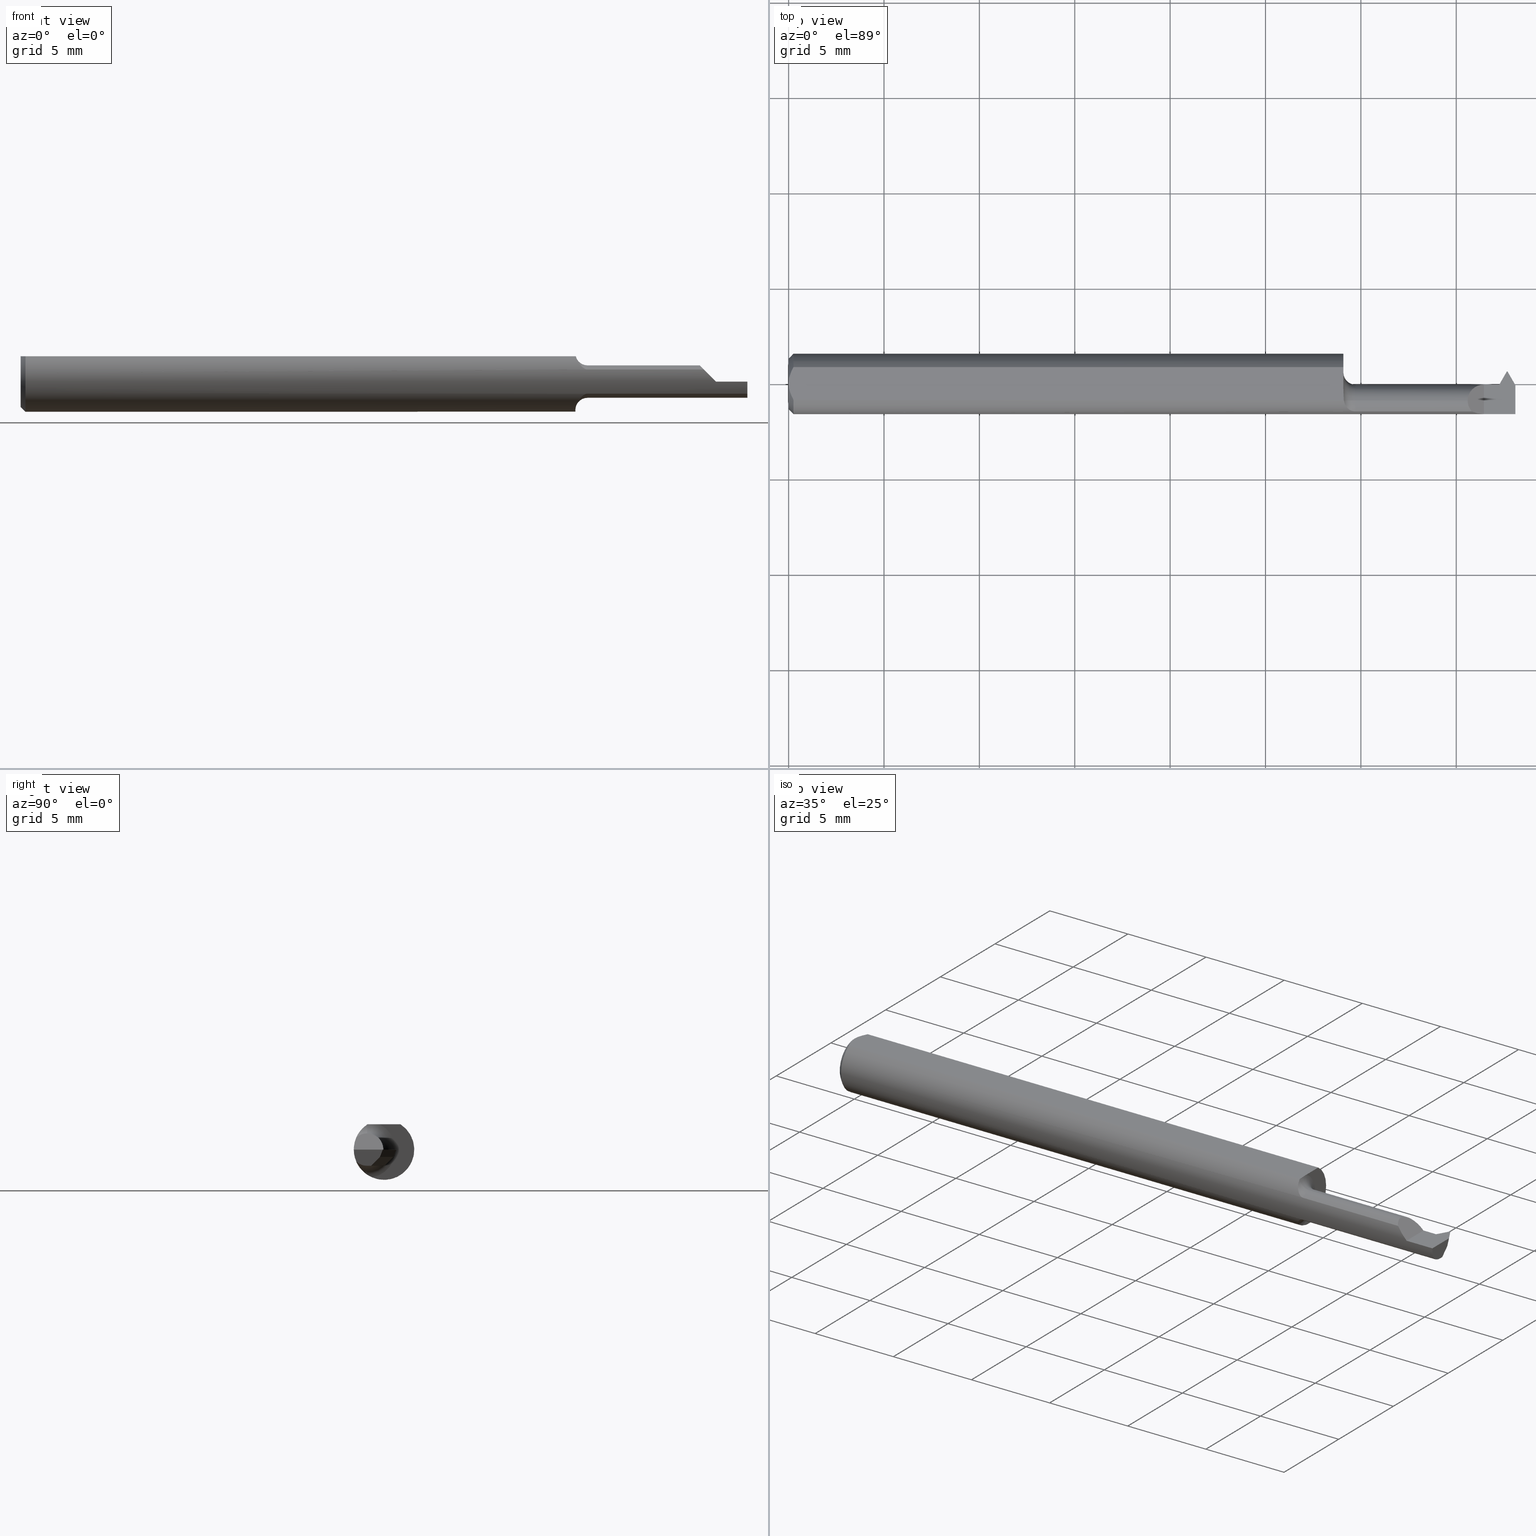
[diagram: canonical four-view strip — front | top / right | iso, engineering-drawing reading convention]
A machine part, canonical four-view strip (front | top / right | iso — engineering-drawing reading convention). The complete STEP part file that produces these views, byte-faithful:
ISO-10303-21;
HEADER;
FILE_DESCRIPTION (( 'STEP AP203' ),
    '1' );
FILE_NAME ('230043-TT090300.STEP',
    '2025-04-25T21:35:14',
    ( '' ),
    ( '' ),
    'SwSTEP 2.0',
    'SolidWorks 2024',
    '' );
FILE_SCHEMA (( 'CONFIG_CONTROL_DESIGN' ));
ENDSEC;

DATA;
#1 = AXIS2_PLACEMENT_3D ( 'NONE', #95, #536, #46 ) ;
#2 = DIRECTION ( 'NONE',  ( 0.000000000000000000, -0.7071067811865464625, -0.7071067811865484609 ) ) ;
#3 = AXIS2_PLACEMENT_3D ( 'NONE', #817, #128, #675 ) ;
#4 = EDGE_LOOP ( 'NONE', ( #75, #637, #794, #220, #113, #784, #22, #621, #500, #458, #505, #152, #480, #800 ) ) ;
#5 = FACE_OUTER_BOUND ( 'NONE', #4, .T. ) ;
#6 = CARTESIAN_POINT ( 'NONE',  ( 1.500000000000000222, -0.008327234897126443644, -0.01499999999999982944 ) ) ;
#7 = LINE ( 'NONE', #636, #656 ) ;
#8 = ORIENTED_EDGE ( 'NONE', *, *, #417, .F. ) ;
#9 = CARTESIAN_POINT ( 'NONE',  ( 1.544889344876811066, -0.1045778609422459426, -0.03350000000000007139 ) ) ;
#10 = CARTESIAN_POINT ( 'NONE',  ( 1.170000000000000151, -0.03485000000000003373, -0.03349999999999998812 ) ) ;
#11 = DIRECTION ( 'NONE',  ( 0.1874275599918964474, 0.1874275599918913682, 0.9642312064598250743 ) ) ;
#12 = VERTEX_POINT ( 'NONE', #130 ) ;
#13 = LINE ( 'NONE', #9, #624 ) ;
#14 = DIRECTION ( 'NONE',  ( 0.000000000000000000, 0.000000000000000000, -1.000000000000000000 ) ) ;
#15 = CIRCLE ( 'NONE', #43, 0.06235000000000000264 ) ;
#16 = CIRCLE ( 'NONE', #289, 0.03350000000000004363 ) ;
#17 = CARTESIAN_POINT ( 'NONE',  ( 1.145000000000000240, 0.000000000000000000, 0.000000000000000000 ) ) ;
#18 = ORIENTED_EDGE ( 'NONE', *, *, #83, .F. ) ;
#19 = FACE_OUTER_BOUND ( 'NONE', #96, .T. ) ;
#20 = CARTESIAN_POINT ( 'NONE',  ( 1.466661542731880319, -0.001350000000000033031, 0.000000000000000000 ) ) ;
#21 = EDGE_CURVE ( 'NONE', #372, #892, #213, .T. ) ;
#22 = ORIENTED_EDGE ( 'NONE', *, *, #860, .F. ) ;
#23 = EDGE_CURVE ( 'NONE', #326, #761, #764, .T. ) ;
#24 = DIRECTION ( 'NONE',  ( 0.000000000000000000, -1.707404996040164512E-16, 1.000000000000000000 ) ) ;
#25 = DIRECTION ( 'NONE',  ( -1.000000000000000000, -0.000000000000000000, -0.000000000000000000 ) ) ;
#26 = VERTEX_POINT ( 'NONE', #759 ) ;
#27 = CARTESIAN_POINT ( 'NONE',  ( 1.468344925588967786, -0.004265704637065729533, -0.01499999999999982944 ) ) ;
#28 = CARTESIAN_POINT ( 'NONE',  ( 1.145000000000000240, 0.02564999999999998531, 4.347496136973102887E-17 ) ) ;
#29 = VERTEX_POINT ( 'NONE', #821 ) ;
#30 = CALENDAR_DATE ( 2025, 25, 4 ) ;
#31 = DIRECTION ( 'NONE',  ( -2.671181031894326048E-14, -0.9816271834476639757, 0.1908089953765452484 ) ) ;
#32 = DIRECTION ( 'NONE',  ( 1.000000000000000000, 0.000000000000000000, 0.000000000000000000 ) ) ;
#33 = ORIENTED_EDGE ( 'NONE', *, *, #114, .T. ) ;
#34 = PERSON_AND_ORGANIZATION ( #310, #68 ) ;
#35 = DIRECTION ( 'NONE',  ( -1.000000000000000000, -0.000000000000000000, -0.000000000000000000 ) ) ;
#36 = DIRECTION ( 'NONE',  ( -0.000000000000000000, 0.000000000000000000, 1.000000000000000000 ) ) ;
#37 = ORIENTED_EDGE ( 'NONE', *, *, #511, .F. ) ;
#38 = APPROVAL ( #39, 'UNSPECIFIED' ) ;
#39 = APPROVAL_STATUS ( 'not_yet_approved' ) ;
#40 = CYLINDRICAL_SURFACE ( 'NONE', #745, 0.03350000000000000894 ) ;
#41 = FACE_OUTER_BOUND ( 'NONE', #774, .T. ) ;
#42 = ORIENTED_EDGE ( 'NONE', *, *, #319, .T. ) ;
#43 = AXIS2_PLACEMENT_3D ( 'NONE', #711, #707, #641 ) ;
#44 = AXIS2_PLACEMENT_3D ( 'NONE', #598, #179, #586 ) ;
#45 = ORIENTED_EDGE ( 'NONE', *, *, #316, .F. ) ;
#46 = DIRECTION ( 'NONE',  ( 0.1908089953765452484, 0.000000000000000000, 0.9816271834476639757 ) ) ;
#47 = ADVANCED_FACE ( 'NONE', ( #260 ), #132, .F. ) ;
#48 = ORIENTED_EDGE ( 'NONE', *, *, #217, .F. ) ;
#49 = EDGE_CURVE ( 'NONE', #372, #649, #139, .T. ) ;
#50 = FACE_OUTER_BOUND ( 'NONE', #110, .T. ) ;
#51 = DIRECTION ( 'NONE',  ( 1.000000000000000000, 0.000000000000000000, 0.000000000000000000 ) ) ;
#52 = DIRECTION ( 'NONE',  ( 1.000000000000000000, 0.000000000000000000, 0.000000000000000000 ) ) ;
#53 = CARTESIAN_POINT ( 'NONE',  ( 1.149768811427851922, -0.04593844585724565777, 0.04230854379301254159 ) ) ;
#54 =( BOUNDED_CURVE ( )  B_SPLINE_CURVE ( 3, ( #98, #381, #161, #104 ),
 .UNSPECIFIED., .F., .T. ) 
 B_SPLINE_CURVE_WITH_KNOTS ( ( 4, 4 ),
 ( 4.712388980384689674, 5.125738186074483060 ),
 .UNSPECIFIED. ) 
 CURVE ( )  GEOMETRIC_REPRESENTATION_ITEM ( )  RATIONAL_B_SPLINE_CURVE ( ( 1.000000000000000000, 0.9858124784975270671, 0.9858124784975270671, 1.000000000000000000 ) ) 
 REPRESENTATION_ITEM ( '' )  );
#55 =( GEOMETRIC_REPRESENTATION_CONTEXT ( 3 ) GLOBAL_UNCERTAINTY_ASSIGNED_CONTEXT ( ( #198 ) ) GLOBAL_UNIT_ASSIGNED_CONTEXT ( ( #364, #428, #634 ) ) REPRESENTATION_CONTEXT ( 'NONE', 'WORKASPACE' ) );
#56 = AXIS2_PLACEMENT_3D ( 'NONE', #317, #861, #36 ) ;
#57 = AXIS2_PLACEMENT_3D ( 'NONE', #804, #885, #24 ) ;
#58 = EDGE_CURVE ( 'NONE', #271, #814, #749, .T. ) ;
#59 = PLANE ( 'NONE',  #439 ) ;
#60 = CARTESIAN_POINT ( 'NONE',  ( 1.404446574417767435, -0.05089794948110515360, 0.03055342558223266003 ) ) ;
#61 = CARTESIAN_POINT ( 'NONE',  ( 1.464661542731879873, -0.001349999999999978604, 0.000000000000000000 ) ) ;
#62 = ORIENTED_EDGE ( 'NONE', *, *, #799, .F. ) ;
#63 = ORIENTED_EDGE ( 'NONE', *, *, #819, .F. ) ;
#64 = CARTESIAN_POINT ( 'NONE',  ( 1.170000000000000151, -0.05709892395982783808, 0.02504466774844096855 ) ) ;
#65 = CARTESIAN_POINT ( 'NONE',  ( 1.483707594345223812, 0.01989203947446441592, -0.01500000000000441952 ) ) ;
#66 = ORIENTED_EDGE ( 'NONE', *, *, #342, .T. ) ;
#67 = ORIENTED_EDGE ( 'NONE', *, *, #511, .T. ) ;
#68 = ORGANIZATION ( 'UNSPECIFIED', 'UNSPECIFIED', '' ) ;
#69 = CARTESIAN_POINT ( 'NONE',  ( 1.145942268045293089, -0.03485000000000020026, 0.05170106381884213148 ) ) ;
#70 = VECTOR ( 'NONE', #243, 39.37007874015748854 ) ;
#71 = LINE ( 'NONE', #6, #395 ) ;
#72 = TOROIDAL_SURFACE ( 'NONE', #187, 0.05849999999999998951, 0.02500000000000000139 ) ;
#73 = DIRECTION ( 'NONE',  ( 0.000000000000000000, 0.000000000000000000, 1.000000000000000000 ) ) ;
#74 = EDGE_CURVE ( 'NONE', #252, #677, #763, .T. ) ;
#75 = ORIENTED_EDGE ( 'NONE', *, *, #694, .F. ) ;
#76 = DIRECTION ( 'NONE',  ( 0.000000000000000000, 0.000000000000000000, -1.000000000000000000 ) ) ;
#77 = DIRECTION ( 'NONE',  ( 4.128790533168626755E-15, -0.7071067811865430208, -0.7071067811865521247 ) ) ;
#78 = ORIENTED_EDGE ( 'NONE', *, *, #904, .T. ) ;
#79 = DIRECTION ( 'NONE',  ( 0.000000000000000000, 0.000000000000000000, 1.000000000000000000 ) ) ;
#80 = CARTESIAN_POINT ( 'NONE',  ( 1.469375214730118451, -0.01074846833720541524, -0.02326727683909952243 ) ) ;
#81 = VERTEX_POINT ( 'NONE', #294 ) ;
#82 = CARTESIAN_POINT ( 'NONE',  ( 1.145000000000000240, -0.001350000000000033031, 4.347496136973102887E-17 ) ) ;
#83 = EDGE_CURVE ( 'NONE', #828, #739, #507, .T. ) ;
#84 = DIRECTION ( 'NONE',  ( 1.000000000000000000, 0.000000000000000000, 0.000000000000000000 ) ) ;
#85 = VECTOR ( 'NONE', #219, 39.37007874015748143 ) ;
#86 = CARTESIAN_POINT ( 'NONE',  ( 1.468344925588967786, -0.004265704637065729533, -0.01499999999999982944 ) ) ;
#87 = VERTEX_POINT ( 'NONE', #80 ) ;
#88 = EDGE_CURVE ( 'NONE', #318, #81, #99, .T. ) ;
#89 = APPROVAL_DATE_TIME ( #657, #403 ) ;
#90 = CARTESIAN_POINT ( 'NONE',  ( 1.482250000000000068, 0.02564999999999998531, 0.000000000000000000 ) ) ;
#91 = LINE ( 'NONE', #286, #597 ) ;
#92 = EDGE_LOOP ( 'NONE', ( #588, #45, #674, #193 ) ) ;
#93 = PERSON_AND_ORGANIZATION ( #310, #68 ) ;
#94 = FACE_OUTER_BOUND ( 'NONE', #575, .T. ) ;
#95 = CARTESIAN_POINT ( 'NONE',  ( 1.464661542731879873, -0.001349999999999978604, 0.000000000000000000 ) ) ;
#96 = EDGE_LOOP ( 'NONE', ( #451, #386, #420, #396 ) ) ;
#97 = DIRECTION ( 'NONE',  ( -1.000000000000000000, 0.000000000000000000, 1.224646799147353700E-16 ) ) ;
#98 = CARTESIAN_POINT ( 'NONE',  ( 1.435000000000000053, -0.06235000000000005121, 7.960204194457796709E-18 ) ) ;
#99 = CIRCLE ( 'NONE', #410, 0.05235000000000005621 ) ;
#100 = AXIS2_PLACEMENT_3D ( 'NONE', #422, #73, #512 ) ;
#101 = ORIENTED_EDGE ( 'NONE', *, *, #447, .F. ) ;
#102 = DIRECTION ( 'NONE',  ( 1.000000000000000000, 0.000000000000000000, 0.000000000000000000 ) ) ;
#103 = CARTESIAN_POINT ( 'NONE',  ( 1.170000000000000151, -0.03485000000000003373, 0.03349999999999998812 ) ) ;
#104 = CARTESIAN_POINT ( 'NONE',  ( 1.409955332251558779, -0.05709892395982780339, 0.02504466774844103794 ) ) ;
#105 = ORIENTED_EDGE ( 'NONE', *, *, #757, .F. ) ;
#106 = DATE_TIME_ROLE ( 'creation_date' ) ;
#107 = FACE_OUTER_BOUND ( 'NONE', #841, .T. ) ;
#108 = LINE ( 'NONE', #28, #226 ) ;
#109 = ORIENTED_EDGE ( 'NONE', *, *, #231, .T. ) ;
#110 = EDGE_LOOP ( 'NONE', ( #848, #537, #166, #477 ) ) ;
#111 = EDGE_CURVE ( 'NONE', #495, #411, #867, .T. ) ;
#112 = DIRECTION ( 'NONE',  ( 0.000000000000000000, -1.000000000000000000, 0.000000000000000000 ) ) ;
#113 = ORIENTED_EDGE ( 'NONE', *, *, #137, .F. ) ;
#114 = EDGE_CURVE ( 'NONE', #495, #411, #7, .T. ) ;
#115 = AXIS2_PLACEMENT_3D ( 'NONE', #369, #237, #725 ) ;
#116 = CC_DESIGN_PERSON_AND_ORGANIZATION_ASSIGNMENT ( #34, #230, ( #744 ) ) ;
#117 = CARTESIAN_POINT ( 'NONE',  ( 1.145000000000000240, -0.03485000000000003373, 0.000000000000000000 ) ) ;
#118 = CARTESIAN_POINT ( 'NONE',  ( 1.170000000000000151, -0.03485000000000003373, 0.05849999999999998951 ) ) ;
#119 = CARTESIAN_POINT ( 'NONE',  ( 1.468475892124523341, -0.005891887582196262720, -0.01685302363880395587 ) ) ;
#120 = VERTEX_POINT ( 'NONE', #426 ) ;
#121 = B_SPLINE_CURVE_WITH_KNOTS ( 'NONE', 3,
 ( #771, #849, #292, #69 ),
 .UNSPECIFIED., .F., .F.,
 ( 4, 4 ),
 ( 3.666883588906561326E-07, 3.024409804903166956E-05 ),
 .UNSPECIFIED. ) ;
#122 = CARTESIAN_POINT ( 'NONE',  ( 1.468594620871771950, -0.006192510509995339391, -0.01735929078915715226 ) ) ;
#123 = EDGE_LOOP ( 'NONE', ( #708, #382 ) ) ;
#124 = LOCAL_TIME ( 14, 35, 14.00000000000000000, #716 ) ;
#125 = ORIENTED_EDGE ( 'NONE', *, *, #430, .T. ) ;
#126 = VECTOR ( 'NONE', #479, 39.37007874015748854 ) ;
#127 = CONICAL_SURFACE ( 'NONE', #365, 0.05235000000000005621, 0.7853981633974447263 ) ;
#128 = DIRECTION ( 'NONE',  ( -1.000000000000000000, -0.000000000000000000, -0.000000000000000000 ) ) ;
#129 = CARTESIAN_POINT ( 'NONE',  ( 1.170000000000000151, -0.03485000000000003373, 0.000000000000000000 ) ) ;
#130 = CARTESIAN_POINT ( 'NONE',  ( 1.170000000000000151, -0.05709892395982783808, -0.02504466774844097895 ) ) ;
#131 = EDGE_CURVE ( 'NONE', #692, #495, #222, .T. ) ;
#132 = PLANE ( 'NONE',  #170 ) ;
#133 = DIRECTION ( 'NONE',  ( 0.000000000000000000, -0.3583679495452948283, -0.9335804264972037414 ) ) ;
#134 = CARTESIAN_POINT ( 'NONE',  ( 1.469076601151433348, -0.01563932465019393994, -0.02764091926197534757 ) ) ;
#135 = ADVANCED_FACE ( 'NONE', ( #648 ), #367, .T. ) ;
#136 = DIRECTION ( 'NONE',  ( -0.002639263425897495421, 0.3583667013992599126, 0.9335771749656170959 ) ) ;
#137 = EDGE_CURVE ( 'NONE', #892, #326, #577, .T. ) ;
#138 = FACE_OUTER_BOUND ( 'NONE', #234, .T. ) ;
#139 = CIRCLE ( 'NONE', #614, 0.02500000000000000139 ) ;
#140 = CARTESIAN_POINT ( 'NONE',  ( 1.469375214730118451, -0.01074846833720541524, -0.02326727683909952243 ) ) ;
#141 = CARTESIAN_POINT ( 'NONE',  ( 1.463822938628645431, -0.001350000000000028044, -0.004314244107103855363 ) ) ;
#142 = EDGE_LOOP ( 'NONE', ( #178, #278, #199 ) ) ;
#143 = CARTESIAN_POINT ( 'NONE',  ( -3.937007874019685528E-05, 0.02564999999999998531, 3.122849337825753624E-17 ) ) ;
#144 = DIRECTION ( 'NONE',  ( 0.7745966692414875121, 0.4472135954999549856, -0.4472135954999537089 ) ) ;
#145 = DIRECTION ( 'NONE',  ( 0.000000000000000000, 0.000000000000000000, -1.000000000000000000 ) ) ;
#146 = EDGE_LOOP ( 'NONE', ( #42, #542, #719, #487, #455, #340 ) ) ;
#147 = EDGE_CURVE ( 'NONE', #642, #751, #91, .T. ) ;
#148 = LINE ( 'NONE', #629, #423 ) ;
#149 = CARTESIAN_POINT ( 'NONE',  ( 1.145000000000000240, -0.02410035868005742585, -0.05750387127396364845 ) ) ;
#150 = EDGE_CURVE ( 'NONE', #751, #87, #370, .T. ) ;
#151 = DIRECTION ( 'NONE',  ( -1.000000000000000000, -0.000000000000000000, -0.000000000000000000 ) ) ;
#152 = ORIENTED_EDGE ( 'NONE', *, *, #165, .F. ) ;
#153 = APPROVAL_STATUS ( 'not_yet_approved' ) ;
#154 = LINE ( 'NONE', #850, #599 ) ;
#155 = VECTOR ( 'NONE', #563, 39.37007874015748854 ) ;
#156 = VECTOR ( 'NONE', #836, 39.37007874015748854 ) ;
#157 = PLANE ( 'NONE',  #324 ) ;
#158 = ORIENTED_EDGE ( 'NONE', *, *, #447, .T. ) ;
#159 = DIRECTION ( 'NONE',  ( 0.000000000000000000, 0.000000000000000000, 1.000000000000000000 ) ) ;
#160 = FACE_OUTER_BOUND ( 'NONE', #603, .T. ) ;
#161 = CARTESIAN_POINT ( 'NONE',  ( 1.417879128153533452, -0.06057445067572577585, 0.01712087184646659752 ) ) ;
#162 = ORIENTED_EDGE ( 'NONE', *, *, #131, .T. ) ;
#163 = FACE_OUTER_BOUND ( 'NONE', #824, .T. ) ;
#164 = PLANE ( 'NONE',  #1 ) ;
#165 = EDGE_CURVE ( 'NONE', #551, #899, #845, .T. ) ;
#166 = ORIENTED_EDGE ( 'NONE', *, *, #655, .T. ) ;
#167 = EDGE_CURVE ( 'NONE', #229, #551, #816, .T. ) ;
#168 = DIRECTION ( 'NONE',  ( 0.000000000000000000, -0.7071067811865521247, 0.7071067811865430208 ) ) ;
#169 = CARTESIAN_POINT ( 'NONE',  ( 1.145765915872935414, -0.03386738844375226237, 0.05234999999999997294 ) ) ;
#170 = AXIS2_PLACEMENT_3D ( 'NONE', #679, #51, #554 ) ;
#171 = CIRCLE ( 'NONE', #755, 0.05849999999999998951 ) ;
#172 = ORIENTED_EDGE ( 'NONE', *, *, #371, .T. ) ;
#173 = CARTESIAN_POINT ( 'NONE',  ( 0.000000000000000000, 0.000000000000000000, 0.000000000000000000 ) ) ;
#174 = FACE_OUTER_BOUND ( 'NONE', #834, .T. ) ;
#175 = PLANE ( 'NONE',  #56 ) ;
#176 = EDGE_LOOP ( 'NONE', ( #654, #67, #467, #889, #210, #266 ) ) ;
#177 = EDGE_CURVE ( 'NONE', #271, #520, #840, .T. ) ;
#178 = ORIENTED_EDGE ( 'NONE', *, *, #308, .T. ) ;
#179 = DIRECTION ( 'NONE',  ( 0.9939866663323926321, 0.02089380904360406063, 0.1074893292241898141 ) ) ;
#180 = CARTESIAN_POINT ( 'NONE',  ( 1.665661542731879941, -0.03485000000000006842, -0.03350000000000006445 ) ) ;
#181 = ADVANCED_FACE ( 'NONE', ( #769 ), #157, .T. ) ;
#182 = VERTEX_POINT ( 'NONE', #433 ) ;
#183 = ORIENTED_EDGE ( 'NONE', *, *, #74, .T. ) ;
#184 = DIRECTION ( 'NONE',  ( 0.000000000000000000, 0.000000000000000000, 1.000000000000000000 ) ) ;
#185 = CARTESIAN_POINT ( 'NONE',  ( 1.170000000000000151, -0.03485000000000003373, 0.000000000000000000 ) ) ;
#186 = CARTESIAN_POINT ( 'NONE',  ( 1.162833844145604534, -0.05613756098172582171, 0.02714514744121323403 ) ) ;
#187 = AXIS2_PLACEMENT_3D ( 'NONE', #619, #256, #184 ) ;
#188 = CARTESIAN_POINT ( 'NONE',  ( 1.145942268045293089, -0.03485000000000020026, 0.05170106381884213148 ) ) ;
#189 = ORIENTED_EDGE ( 'NONE', *, *, #332, .F. ) ;
#190 = LINE ( 'NONE', #470, #272 ) ;
#191 = ORIENTED_EDGE ( 'NONE', *, *, #760, .F. ) ;
#192 = CARTESIAN_POINT ( 'NONE',  ( 1.466661542731880319, -0.001350000000000033031, 0.000000000000000000 ) ) ;
#193 = ORIENTED_EDGE ( 'NONE', *, *, #371, .F. ) ;
#194 = VECTOR ( 'NONE', #825, 39.37007874015748143 ) ;
#195 = VECTOR ( 'NONE', #781, 39.37007874015748143 ) ;
#196 = CARTESIAN_POINT ( 'NONE',  ( 0.000000000000000000, 0.000000000000000000, -0.05235000000000005621 ) ) ;
#197 = CARTESIAN_POINT ( 'NONE',  ( 1.415376154339498704, -0.001350000000000043440, 0.01962384566050133158 ) ) ;
#198 = UNCERTAINTY_MEASURE_WITH_UNIT (LENGTH_MEASURE( 1.000000000000000082E-05 ), #364, 'distance_accuracy_value', 'NONE');
#199 = ORIENTED_EDGE ( 'NONE', *, *, #819, .T. ) ;
#200 = EDGE_CURVE ( 'NONE', #291, #329, #15, .T. ) ;
#201 = DIRECTION ( 'NONE',  ( 0.000000000000000000, 0.000000000000000000, 1.000000000000000000 ) ) ;
#202 = PLANE ( 'NONE',  #643 ) ;
#203 = CARTESIAN_POINT ( 'NONE',  ( 1.145942268045292645, -0.03484999999999877085, -0.05170106381884308905 ) ) ;
#204 = EDGE_CURVE ( 'NONE', #739, #271, #855, .T. ) ;
#205 = PRODUCT_RELATED_PRODUCT_CATEGORY ( 'detail', '', ( #513 ) ) ;
#206 = LINE ( 'NONE', #82, #407 ) ;
#207 =( BOUNDED_CURVE ( )  B_SPLINE_CURVE ( 3, ( #359, #503, #436, #285 ),
 .UNSPECIFIED., .F., .F. ) 
 B_SPLINE_CURVE_WITH_KNOTS ( ( 4, 4 ),
 ( 4.342163871307964662, 4.520402762665540308 ),
 .UNSPECIFIED. ) 
 CURVE ( )  GEOMETRIC_REPRESENTATION_ITEM ( )  RATIONAL_B_SPLINE_CURVE ( ( 1.000000000000000000, 0.9973543265518616252, 0.9973543265518616252, 1.000000000000000000 ) ) 
 REPRESENTATION_ITEM ( '' )  );
#208 = DIRECTION ( 'NONE',  ( 0.000000000000000000, 0.000000000000000000, 1.000000000000000000 ) ) ;
#209 = CARTESIAN_POINT ( 'NONE',  ( 1.482239674799990192, 0.02705198505099115983, 0.003652295925201394945 ) ) ;
#210 = ORIENTED_EDGE ( 'NONE', *, *, #760, .T. ) ;
#211 = APPROVAL_PERSON_ORGANIZATION ( #853, #376, #509 ) ;
#212 = LINE ( 'NONE', #280, #843 ) ;
#213 = B_SPLINE_CURVE_WITH_KNOTS ( 'NONE', 3,
 ( #559, #347, #689, #53, #617, #489, #615, #416, #186, #343, #896, #339 ),
 .UNSPECIFIED., .F., .F.,
 ( 4, 2, 2, 2, 2, 4 ),
 ( 3.024409804903166956E-05, 0.0003165093165950419864, 0.0006027745351410522794, 0.0008890397536870626267, 0.001032172362960071107, 0.001175304972233079913 ),
 .UNSPECIFIED. ) ;
#214 = VECTOR ( 'NONE', #796, 39.37007874015748854 ) ;
#215 = DIRECTION ( 'NONE',  ( 0.000000000000000000, 0.000000000000000000, 1.000000000000000000 ) ) ;
#216 = DIRECTION ( 'NONE',  ( 0.000000000000000000, 0.000000000000000000, -1.000000000000000000 ) ) ;
#217 = EDGE_CURVE ( 'NONE', #671, #336, #683, .T. ) ;
#218 = VERTEX_POINT ( 'NONE', #20 ) ;
#219 = DIRECTION ( 'NONE',  ( -0.002639263425897988517, -0.3583667013992599681, -0.9335771749656170959 ) ) ;
#220 = ORIENTED_EDGE ( 'NONE', *, *, #316, .T. ) ;
#221 = DIRECTION ( 'NONE',  ( 1.000000000000000000, 0.000000000000000000, 0.000000000000000000 ) ) ;
#222 = LINE ( 'NONE', #632, #259 ) ;
#223 = ORIENTED_EDGE ( 'NONE', *, *, #481, .T. ) ;
#224 = APPROVAL_PERSON_ORGANIZATION ( #516, #38, #720 ) ;
#225 = CARTESIAN_POINT ( 'NONE',  ( 1.500000000000000222, -0.2500000000000000555, 0.000000000000000000 ) ) ;
#226 = VECTOR ( 'NONE', #595, 39.37007874015748143 ) ;
#227 = AXIS2_PLACEMENT_3D ( 'NONE', #333, #52, #463 ) ;
#228 = CARTESIAN_POINT ( 'NONE',  ( 1.482292405654776379, 0.01989203947446951948, -0.01499999999999982944 ) ) ;
#229 = VERTEX_POINT ( 'NONE', #652 ) ;
#230 = PERSON_AND_ORGANIZATION_ROLE ( 'design_supplier' ) ;
#231 = EDGE_CURVE ( 'NONE', #520, #252, #108, .T. ) ;
#232 = CARTESIAN_POINT ( 'NONE',  ( 1.472624370276264250, -1.451401834427387794, 0.2267214358391617668 ) ) ;
#233 = CARTESIAN_POINT ( 'NONE',  ( 1.409955332251558779, -0.05709892395982780339, 0.02504466774844103794 ) ) ;
#234 = EDGE_LOOP ( 'NONE', ( #62, #490, #109, #183 ) ) ;
#235 = ADVANCED_FACE ( 'NONE', ( #797 ), #307, .F. ) ;
#236 = APPROVAL_DATE_TIME ( #593, #38 ) ;
#237 = DIRECTION ( 'NONE',  ( -1.000000000000000000, -0.000000000000000000, -0.000000000000000000 ) ) ;
#238 = CARTESIAN_POINT ( 'NONE',  ( 0.01000000000000001582, 0.000000000000000000, 0.000000000000000000 ) ) ;
#239 = EDGE_LOOP ( 'NONE', ( #18, #765, #682 ) ) ;
#240 = COORDINATED_UNIVERSAL_TIME_OFFSET ( 8, 0, .BEHIND. ) ;
#241 = LOCAL_TIME ( 14, 35, 14.00000000000000000, #866 ) ;
#242 = CARTESIAN_POINT ( 'NONE',  ( 1.483749999999999902, 0.02564999999999998531, 0.000000000000000000 ) ) ;
#243 = DIRECTION ( 'NONE',  ( 0.4999999999999953926, -0.8660254037844411501, 0.000000000000000000 ) ) ;
#244 = CIRCLE ( 'NONE', #712, 0.03349999999999998812 ) ;
#245 = VECTOR ( 'NONE', #854, 39.37007874015748143 ) ;
#246 = ADVANCED_FACE ( 'NONE', ( #251 ), #175, .F. ) ;
#247 = EDGE_LOOP ( 'NONE', ( #533, #693, #255, #265 ) ) ;
#248 = VERTEX_POINT ( 'NONE', #879 ) ;
#249 = CARTESIAN_POINT ( 'NONE',  ( 1.483707594345223812, 0.01989203947446882212, -0.01500000000000001159 ) ) ;
#250 = EDGE_CURVE ( 'NONE', #677, #881, #670, .T. ) ;
#251 = FACE_OUTER_BOUND ( 'NONE', #349, .T. ) ;
#252 = VERTEX_POINT ( 'NONE', #461 ) ;
#253 = LINE ( 'NONE', #263, #785 ) ;
#254 = CARTESIAN_POINT ( 'NONE',  ( -8.573957617566337510E-16, 0.005954997531773997300, 0.05234999999999997294 ) ) ;
#255 = ORIENTED_EDGE ( 'NONE', *, *, #446, .F. ) ;
#256 = DIRECTION ( 'NONE',  ( -1.000000000000000000, -0.000000000000000000, -0.000000000000000000 ) ) ;
#257 = CARTESIAN_POINT ( 'NONE',  ( 0.01000000000000001582, 0.03386738844375224849, 0.05234999999999997294 ) ) ;
#258 = ORIENTED_EDGE ( 'NONE', *, *, #58, .T. ) ;
#259 = VECTOR ( 'NONE', #698, 39.37007874015748143 ) ;
#260 = FACE_OUTER_BOUND ( 'NONE', #123, .T. ) ;
#261 = EDGE_CURVE ( 'NONE', #579, #810, #741, .T. ) ;
#262 = CC_DESIGN_DATE_AND_TIME_ASSIGNMENT ( #524, #106, ( #886 ) ) ;
#263 = CARTESIAN_POINT ( 'NONE',  ( 1.665661542731879941, -0.03485000000000006842, -0.03350000000000006445 ) ) ;
#264 = DIRECTION ( 'NONE',  ( 0.000000000000000000, 0.000000000000000000, 1.000000000000000000 ) ) ;
#265 = ORIENTED_EDGE ( 'NONE', *, *, #137, .T. ) ;
#266 = ORIENTED_EDGE ( 'NONE', *, *, #147, .T. ) ;
#267 = CARTESIAN_POINT ( 'NONE',  ( 1.468344925588967786, -0.004265704637065729533, -0.01499999999999982944 ) ) ;
#268 = CARTESIAN_POINT ( 'NONE',  ( 1.468344925588967786, -0.005604713232305744836, -0.01633900859523984908 ) ) ;
#269 = CARTESIAN_POINT ( 'NONE',  ( 1.401499999999999746, -0.04314448596099430128, 0.03350000000000000894 ) ) ;
#270 = EDGE_CURVE ( 'NONE', #120, #344, #706, .T. ) ;
#271 = VERTEX_POINT ( 'NONE', #228 ) ;
#272 = VECTOR ( 'NONE', #750, 39.37007874015748143 ) ;
#273 = VECTOR ( 'NONE', #859, 39.37007874015748143 ) ;
#274 = LINE ( 'NONE', #435, #818 ) ;
#275 = PLANE ( 'NONE',  #585 ) ;
#276 = ADVANCED_FACE ( 'NONE', ( #385 ), #660, .T. ) ;
#277 = EDGE_CURVE ( 'NONE', #329, #29, #783, .T. ) ;
#278 = ORIENTED_EDGE ( 'NONE', *, *, #669, .T. ) ;
#279 = ORIENTED_EDGE ( 'NONE', *, *, #601, .T. ) ;
#280 = CARTESIAN_POINT ( 'NONE',  ( 1.466661542731880319, -0.001350000000000033031, 0.000000000000000000 ) ) ;
#281 = FACE_OUTER_BOUND ( 'NONE', #907, .T. ) ;
#282 = CARTESIAN_POINT ( 'NONE',  ( 1.536646560621365065, -0.4340318184035465987, -0.5630680158826226744 ) ) ;
#283 = ORIENTED_EDGE ( 'NONE', *, *, #592, .T. ) ;
#284 = MANIFOLD_SOLID_BREP ( 'Cut-Sweep1', #530 ) ;
#285 = CARTESIAN_POINT ( 'NONE',  ( 1.468069896840982214, -0.003789340871974184680, -0.01254932087944042769 ) ) ;
#286 = CARTESIAN_POINT ( 'NONE',  ( 1.471074374875131818, -0.03894026324521653731, -0.03350000000000006445 ) ) ;
#287 = ORIENTED_EDGE ( 'NONE', *, *, #261, .F. ) ;
#288 = VECTOR ( 'NONE', #312, 39.37007874015748143 ) ;
#289 = AXIS2_PLACEMENT_3D ( 'NONE', #696, #625, #215 ) ;
#290 = CARTESIAN_POINT ( 'NONE',  ( 1.469375214730118451, -0.01074846833720541524, -0.02326727683909952243 ) ) ;
#291 = VERTEX_POINT ( 'NONE', #737 ) ;
#292 = CARTESIAN_POINT ( 'NONE',  ( 1.145880455779485052, -0.03452552213364552119, 0.05191978376012026247 ) ) ;
#293 = CARTESIAN_POINT ( 'NONE',  ( 1.462222201859867177, -0.003789340872012434899, -0.01254932087943251388 ) ) ;
#294 = CARTESIAN_POINT ( 'NONE',  ( 0.000000000000000000, 0.000000000000000000, 0.05234999999999997294 ) ) ;
#295 = EDGE_LOOP ( 'NONE', ( #321, #826, #747, #445, #570, #809, #378 ) ) ;
#296 = PERSON_AND_ORGANIZATION ( #310, #68 ) ;
#297 = PLANE ( 'NONE',  #44 ) ;
#298 = CARTESIAN_POINT ( 'NONE',  ( 1.462222201859867177, -0.003789340872012434899, -0.01254932087943251388 ) ) ;
#299 = ORIENTED_EDGE ( 'NONE', *, *, #231, .F. ) ;
#300 = ADVANCED_FACE ( 'NONE', ( #41 ), #164, .F. ) ;
#301 = COORDINATED_UNIVERSAL_TIME_OFFSET ( 8, 0, .BEHIND. ) ;
#302 = CC_DESIGN_APPROVAL ( #38, ( #886 ) ) ;
#303 = DIRECTION ( 'NONE',  ( 0.000000000000000000, 0.000000000000000000, 1.000000000000000000 ) ) ;
#304 = CIRCLE ( 'NONE', #802, 0.06235000000000000264 ) ;
#305 = EDGE_CURVE ( 'NONE', #248, #713, #665, .T. ) ;
#306 = CIRCLE ( 'NONE', #3, 0.03349999999999998812 ) ;
#307 = PLANE ( 'NONE',  #471 ) ;
#308 = EDGE_CURVE ( 'NONE', #12, #229, #578, .T. ) ;
#309 = ORIENTED_EDGE ( 'NONE', *, *, #786, .F. ) ;
#310 = PERSON ( 'UNSPECIFIED', 'UNSPECIFIED', 'UNSPECIFIED', ('UNSPECIFIED'), ('UNSPECIFIED'), ('UNSPECIFIED') ) ;
#311 = LINE ( 'NONE', #581, #273 ) ;
#312 = DIRECTION ( 'NONE',  ( 0.000000000000000000, 1.000000000000000000, 9.763757272843491502E-17 ) ) ;
#313 = ORIENTED_EDGE ( 'NONE', *, *, #332, .T. ) ;
#314 = CALENDAR_DATE ( 2025, 25, 4 ) ;
#315 = DIRECTION ( 'NONE',  ( 0.000000000000000000, 0.000000000000000000, 1.000000000000000000 ) ) ;
#316 = EDGE_CURVE ( 'NONE', #770, #326, #54, .T. ) ;
#317 = CARTESIAN_POINT ( 'NONE',  ( 1.500000000000000222, 0.000000000000000000, 0.000000000000000000 ) ) ;
#318 = VERTEX_POINT ( 'NONE', #733 ) ;
#319 = EDGE_CURVE ( 'NONE', #291, #120, #450, .T. ) ;
#320 = PERSON_AND_ORGANIZATION_ROLE ( 'creator' ) ;
#321 = ORIENTED_EDGE ( 'NONE', *, *, #669, .F. ) ;
#322 = FACE_OUTER_BOUND ( 'NONE', #239, .T. ) ;
#323 = DIRECTION ( 'NONE',  ( -0.4999999999999943934, -0.8660254037844418162, 0.000000000000000000 ) ) ;
#324 = AXIS2_PLACEMENT_3D ( 'NONE', #504, #773, #145 ) ;
#325 = VECTOR ( 'NONE', #647, 39.37007874015748854 ) ;
#326 = VERTEX_POINT ( 'NONE', #233 ) ;
#327 = ORIENTED_EDGE ( 'NONE', *, *, #150, .T. ) ;
#328 = PLANE ( 'NONE',  #584 ) ;
#329 = VERTEX_POINT ( 'NONE', #540 ) ;
#330 = CARTESIAN_POINT ( 'NONE',  ( 1.500000000000000222, 0.000000000000000000, 0.000000000000000000 ) ) ;
#331 = DIRECTION ( 'NONE',  ( 0.000000000000000000, 0.000000000000000000, -1.000000000000000000 ) ) ;
#332 = EDGE_CURVE ( 'NONE', #692, #218, #609, .T. ) ;
#333 = CARTESIAN_POINT ( 'NONE',  ( 1.468344925588967786, 0.03611762883154503306, -0.01499999999999982944 ) ) ;
#334 = FACE_OUTER_BOUND ( 'NONE', #142, .T. ) ;
#335 = EDGE_CURVE ( 'NONE', #828, #671, #431, .T. ) ;
#336 = VERTEX_POINT ( 'NONE', #341 ) ;
#337 = AXIS2_PLACEMENT_3D ( 'NONE', #787, #31, #721 ) ;
#338 = FACE_OUTER_BOUND ( 'NONE', #92, .T. ) ;
#339 = CARTESIAN_POINT ( 'NONE',  ( 1.170000000000000151, -0.05709892395982783808, 0.02504466774844096855 ) ) ;
#340 = ORIENTED_EDGE ( 'NONE', *, *, #442, .F. ) ;
#341 = CARTESIAN_POINT ( 'NONE',  ( 1.468344925588967786, -0.01851099140476010138, -0.02924528676769424032 ) ) ;
#342 = EDGE_CURVE ( 'NONE', #81, #29, #405, .T. ) ;
#343 = CARTESIAN_POINT ( 'NONE',  ( 1.166182746789183433, -0.05687562864610639507, 0.02556262210127104723 ) ) ;
#344 = VERTEX_POINT ( 'NONE', #408 ) ;
#345 = LINE ( 'NONE', #196, #880 ) ;
#346 = LINE ( 'NONE', #567, #626 ) ;
#347 = CARTESIAN_POINT ( 'NONE',  ( 1.146534511548445989, -0.03795892839402155439, 0.04960543663965543554 ) ) ;
#348 = CC_DESIGN_APPROVAL ( #376, ( #744 ) ) ;
#349 = EDGE_LOOP ( 'NONE', ( #465, #283, #550, #835, #602, #856 ) ) ;
#350 = VECTOR ( 'NONE', #604, 39.37007874015748143 ) ;
#351 = CARTESIAN_POINT ( 'NONE',  ( 1.500000000000000222, -0.008327234897126443644, -0.01499999999999982944 ) ) ;
#352 = CARTESIAN_POINT ( 'NONE',  ( 1.483000000000000096, 0.02111762883154503709, -0.01499999999999982944 ) ) ;
#353 = DIRECTION ( 'NONE',  ( 0.000000000000000000, 0.000000000000000000, -1.000000000000000000 ) ) ;
#354 = ORIENTED_EDGE ( 'NONE', *, *, #402, .T. ) ;
#355 = CARTESIAN_POINT ( 'NONE',  ( 1.470794662288163357, -0.02563342286623731051, -0.03350000000000000894 ) ) ;
#356 = DIRECTION ( 'NONE',  ( -0.02101556823979023464, 0.9997791485580996840, 9.761346359101127472E-17 ) ) ;
#357 = ORIENTED_EDGE ( 'NONE', *, *, #217, .T. ) ;
#358 = CARTESIAN_POINT ( 'NONE',  ( 1.145000000000000240, 0.03386738844375224849, 0.05234999999999997294 ) ) ;
#359 = CARTESIAN_POINT ( 'NONE',  ( 1.468701029330982122, -0.006506373125172337096, -0.01785745826204101702 ) ) ;
#360 = CARTESIAN_POINT ( 'NONE',  ( 1.144999999999999352, -0.02787679624425087183, -0.05592113435880396305 ) ) ;
#361 = LOCAL_TIME ( 14, 35, 14.00000000000000000, #240 ) ;
#362 = ORIENTED_EDGE ( 'NONE', *, *, #177, .F. ) ;
#363 = ADVANCED_FACE ( 'NONE', ( #50 ), #59, .F. ) ;
#364 =( CONVERSION_BASED_UNIT ( 'INCH', #775 ) LENGTH_UNIT ( ) NAMED_UNIT ( #743 ) );
#365 = AXIS2_PLACEMENT_3D ( 'NONE', #640, #221, #14 ) ;
#366 = FACE_OUTER_BOUND ( 'NONE', #779, .T. ) ;
#367 = PLANE ( 'NONE',  #100 ) ;
#368 = ORIENTED_EDGE ( 'NONE', *, *, #498, .T. ) ;
#369 = CARTESIAN_POINT ( 'NONE',  ( 1.170000000000000151, -0.03485000000000003373, 0.000000000000000000 ) ) ;
#370 = LINE ( 'NONE', #282, #155 ) ;
#371 = EDGE_CURVE ( 'NONE', #761, #742, #492, .T. ) ;
#372 = VERTEX_POINT ( 'NONE', #188 ) ;
#373 = PERSON_AND_ORGANIZATION ( #310, #68 ) ;
#374 = ADVANCED_FACE ( 'NONE', ( #338 ), #328, .F. ) ;
#375 = CARTESIAN_POINT ( 'NONE',  ( 1.145000000000000240, -0.03485000000000003373, 0.000000000000000000 ) ) ;
#376 = APPROVAL ( #448, 'UNSPECIFIED' ) ;
#377 = CARTESIAN_POINT ( 'NONE',  ( 1.500000000000000222, 0.000000000000000000, 0.000000000000000000 ) ) ;
#378 = ORIENTED_EDGE ( 'NONE', *, *, #786, .T. ) ;
#379 = CARTESIAN_POINT ( 'NONE',  ( 0.000000000000000000, 0.000000000000000000, 0.000000000000000000 ) ) ;
#380 = VECTOR ( 'NONE', #112, 39.37007874015748143 ) ;
#381 = CARTESIAN_POINT ( 'NONE',  ( 1.426347495885637029, -0.06235000000000000264, 0.008652504114362861293 ) ) ;
#382 = ORIENTED_EDGE ( 'NONE', *, *, #88, .T. ) ;
#383 = PERSON_AND_ORGANIZATION_ROLE ( 'classification_officer' ) ;
#384 = DIRECTION ( 'NONE',  ( 0.000000000000000000, -0.7071067811865429098, -0.7071067811865520136 ) ) ;
#385 = FACE_OUTER_BOUND ( 'NONE', #903, .T. ) ;
#386 = ORIENTED_EDGE ( 'NONE', *, *, #893, .T. ) ;
#387 = APPROVAL_DATE_TIME ( #731, #376 ) ;
#388 = CARTESIAN_POINT ( 'NONE',  ( 1.468344925588967786, -0.005604713232305744836, -0.01633900859523984908 ) ) ;
#389 = DIRECTION ( 'NONE',  ( 0.000000000000000000, -9.763757272843491502E-17, 1.000000000000000000 ) ) ;
#390 = ORIENTED_EDGE ( 'NONE', *, *, #58, .F. ) ;
#391 = ORIENTED_EDGE ( 'NONE', *, *, #204, .F. ) ;
#392 = AXIS2_PLACEMENT_3D ( 'NONE', #143, #701, #133 ) ;
#393 = DIRECTION ( 'NONE',  ( -1.000000000000000000, -0.000000000000000000, -0.000000000000000000 ) ) ;
#394 = CARTESIAN_POINT ( 'NONE',  ( 1.500000000000000222, 3.270858686402576331E-18, -0.03350000000000006445 ) ) ;
#395 = VECTOR ( 'NONE', #2, 39.37007874015748854 ) ;
#396 = ORIENTED_EDGE ( 'NONE', *, *, #442, .T. ) ;
#397 = CARTESIAN_POINT ( 'NONE',  ( 1.435000000000000053, -0.001350000000000033031, 4.347496136973102887E-17 ) ) ;
#398 = CARTESIAN_POINT ( 'NONE',  ( 0.001055043921633170472, -0.01186408073210962373, 0.05234999999999998682 ) ) ;
#399 = ADVANCED_FACE ( 'NONE', ( #334 ), #673, .F. ) ;
#400 = DIRECTION ( 'NONE',  ( 0.000000000000000000, -1.000000000000000000, 0.000000000000000000 ) ) ;
#401 = CARTESIAN_POINT ( 'NONE',  ( 1.435000000000000053, -0.06235000000000005121, 7.960204194457796709E-18 ) ) ;
#402 = EDGE_CURVE ( 'NONE', #814, #751, #190, .T. ) ;
#403 = APPROVAL ( #153, 'UNSPECIFIED' ) ;
#404 = CARTESIAN_POINT ( 'NONE',  ( 1.435000000000000053, -0.2500000000000000555, 7.960204194457796709E-18 ) ) ;
#405 = B_SPLINE_CURVE_WITH_KNOTS ( 'NONE', 3,
 ( #905, #254, #898, #616, #823, #257 ),
 .UNSPECIFIED., .F., .F.,
 ( 4, 2, 4 ),
 ( 0.003093386807937201569, 0.003544501666246021275, 0.003995616524554840981 ),
 .UNSPECIFIED. ) ;
#406 = ORIENTED_EDGE ( 'NONE', *, *, #21, .T. ) ;
#407 = VECTOR ( 'NONE', #623, 39.37007874015748143 ) ;
#408 = CARTESIAN_POINT ( 'NONE',  ( 1.145000000000000240, -0.008740088089003446997, 0.05234999999999997294 ) ) ;
#409 = DESIGN_CONTEXT ( 'detailed design', #862, 'design' ) ;
#410 = AXIS2_PLACEMENT_3D ( 'NONE', #847, #25, #353 ) ;
#411 = VERTEX_POINT ( 'NONE', #61 ) ;
#412 = B_SPLINE_CURVE_WITH_KNOTS ( 'NONE', 3,
 ( #488, #758, #754, #398, #678, #820 ),
 .UNSPECIFIED., .F., .F.,
 ( 4, 2, 4 ),
 ( 0.002189598257423869612, 0.002641492532680535590, 0.003093386807937201569 ),
 .UNSPECIFIED. ) ;
#413 = ADVANCED_FACE ( 'NONE', ( #684 ), #746, .T. ) ;
#414 = FACE_OUTER_BOUND ( 'NONE', #724, .T. ) ;
#415 = LINE ( 'NONE', #192, #515 ) ;
#416 = CARTESIAN_POINT ( 'NONE',  ( 1.161301950600605259, -0.05561629140796690157, 0.02821490679420931430 ) ) ;
#417 = EDGE_CURVE ( 'NONE', #810, #770, #553, .T. ) ;
#418 = DIRECTION ( 'NONE',  ( -0.4999999999999953926, 0.8660254037844412611, 6.764529467734081152E-17 ) ) ;
#419 = DIRECTION ( 'NONE',  ( -1.000000000000000000, -0.000000000000000000, -0.000000000000000000 ) ) ;
#420 = ORIENTED_EDGE ( 'NONE', *, *, #200, .F. ) ;
#421 = CARTESIAN_POINT ( 'NONE',  ( 1.482250000000000068, 0.02564999999999998531, 0.000000000000000000 ) ) ;
#422 = CARTESIAN_POINT ( 'NONE',  ( 1.630958352158234037, 0.06235000000000000264, 0.05234999999999997294 ) ) ;
#423 = VECTOR ( 'NONE', #838, 39.37007874015748143 ) ;
#424 = PLANE ( 'NONE',  #392 ) ;
#425 = CARTESIAN_POINT ( 'NONE',  ( 1.145000000000000240, -0.03485000000000003373, 0.000000000000000000 ) ) ;
#426 = CARTESIAN_POINT ( 'NONE',  ( 1.145765915872935414, -0.03386738844375226237, 0.05234999999999997294 ) ) ;
#427 = ORIENTED_EDGE ( 'NONE', *, *, #627, .T. ) ;
#428 =( NAMED_UNIT ( * ) PLANE_ANGLE_UNIT ( ) SI_UNIT ( $, .RADIAN. ) );
#429 = CARTESIAN_POINT ( 'NONE',  ( 0.000000000000000000, 0.000000000000000000, 0.000000000000000000 ) ) ;
#430 = EDGE_CURVE ( 'NONE', #411, #218, #415, .T. ) ;
#431 =( BOUNDED_CURVE ( )  B_SPLINE_CURVE ( 3, ( #607, #122, #119, #268 ),
 .UNSPECIFIED., .F., .F. ) 
 B_SPLINE_CURVE_WITH_KNOTS ( ( 4, 4 ),
 ( 3.364779490191137867, 3.417501371238728325 ),
 .UNSPECIFIED. ) 
 CURVE ( )  GEOMETRIC_REPRESENTATION_ITEM ( )  RATIONAL_B_SPLINE_CURVE ( ( 1.000000000000000000, 0.9997683803513917056, 0.9997683803513917056, 1.000000000000000000 ) ) 
 REPRESENTATION_ITEM ( '' )  );
#432 = CC_DESIGN_PERSON_AND_ORGANIZATION_ASSIGNMENT ( #373, #459, ( #513 ) ) ;
#433 = CARTESIAN_POINT ( 'NONE',  ( 1.500000000000000222, -0.05709892395982777563, -0.02504466774844104834 ) ) ;
#434 = ORIENTED_EDGE ( 'NONE', *, *, #827, .T. ) ;
#435 = CARTESIAN_POINT ( 'NONE',  ( 0.000000000000000000, 0.03386738844375224849, 0.05234999999999997294 ) ) ;
#436 = CARTESIAN_POINT ( 'NONE',  ( 1.468285416211164485, -0.004535921870353929602, -0.01439717369343915948 ) ) ;
#437 = DIRECTION ( 'NONE',  ( 0.000000000000000000, 8.919279830060556988E-16, -1.000000000000000000 ) ) ;
#438 = ORIENTED_EDGE ( 'NONE', *, *, #601, .F. ) ;
#439 = AXIS2_PLACEMENT_3D ( 'NONE', #748, #613, #681 ) ;
#440 = COORDINATED_UNIVERSAL_TIME_OFFSET ( 8, 0, .BEHIND. ) ;
#441 = CIRCLE ( 'NONE', #57, 0.02500000000000000139 ) ;
#442 = EDGE_CURVE ( 'NONE', #291, #81, #412, .T. ) ;
#443 = LINE ( 'NONE', #65, #156 ) ;
#444 = CARTESIAN_POINT ( 'NONE',  ( 1.317830771365940068, -0.05709892395982781726, 0.02504466774844102059 ) ) ;
#445 = ORIENTED_EDGE ( 'NONE', *, *, #270, .F. ) ;
#446 = EDGE_CURVE ( 'NONE', #892, #649, #244, .T. ) ;
#447 = EDGE_CURVE ( 'NONE', #336, #87, #873, .T. ) ;
#448 = APPROVAL_STATUS ( 'not_yet_approved' ) ;
#449 = CYLINDRICAL_SURFACE ( 'NONE', #517, 0.03350000000000000894 ) ;
#450 = LINE ( 'NONE', #869, #801 ) ;
#451 = ORIENTED_EDGE ( 'NONE', *, *, #88, .F. ) ;
#452 = SECURITY_CLASSIFICATION_LEVEL ( 'unclassified' ) ;
#453 = PLANE ( 'NONE',  #337 ) ;
#454 = CARTESIAN_POINT ( 'NONE',  ( 1.149421047945414553, -0.04628690345972887032, -0.04228592193483770439 ) ) ;
#455 = ORIENTED_EDGE ( 'NONE', *, *, #342, .F. ) ;
#456 = AXIS2_PLACEMENT_3D ( 'NONE', #17, #782, #216 ) ;
#457 = PLANE ( 'NONE',  #531 ) ;
#458 = ORIENTED_EDGE ( 'NONE', *, *, #277, .T. ) ;
#459 = PERSON_AND_ORGANIZATION_ROLE ( 'design_owner' ) ;
#460 = DIRECTION ( 'NONE',  ( 0.4999999999999962252, 0.8660254037844408170, 0.000000000000000000 ) ) ;
#461 = CARTESIAN_POINT ( 'NONE',  ( 1.483749999999999902, 0.02564999999999998531, 0.000000000000000000 ) ) ;
#462 = ORIENTED_EDGE ( 'NONE', *, *, #552, .F. ) ;
#463 = DIRECTION ( 'NONE',  ( 0.000000000000000000, 0.000000000000000000, -1.000000000000000000 ) ) ;
#464 = DIRECTION ( 'NONE',  ( 0.000000000000000000, -1.000000000000000000, -9.763757272843491502E-17 ) ) ;
#465 = ORIENTED_EDGE ( 'NONE', *, *, #498, .F. ) ;
#466 =( BOUNDED_CURVE ( )  B_SPLINE_CURVE ( 3, ( #710, #355, #772, #290 ),
 .UNSPECIFIED., .F., .T. ) 
 B_SPLINE_CURVE_WITH_KNOTS ( ( 4, 4 ),
 ( 3.333578871309169855, 4.136587116319170754 ),
 .UNSPECIFIED. ) 
 CURVE ( )  GEOMETRIC_REPRESENTATION_ITEM ( )  RATIONAL_B_SPLINE_CURVE ( ( 1.000000000000000000, 0.9469828129562340990, 0.9469828129562340990, 1.000000000000000000 ) ) 
 REPRESENTATION_ITEM ( '' )  );
#467 = ORIENTED_EDGE ( 'NONE', *, *, #832, .F. ) ;
#468 = LINE ( 'NONE', #539, #350 ) ;
#469 = EDGE_CURVE ( 'NONE', #182, #810, #304, .T. ) ;
#470 = CARTESIAN_POINT ( 'NONE',  ( 1.512441426489126828, 0.05361167535801778655, -0.03350000000000005751 ) ) ;
#471 = AXIS2_PLACEMENT_3D ( 'NONE', #180, #389, #464 ) ;
#472 = AXIS2_PLACEMENT_3D ( 'NONE', #546, #478, #201 ) ;
#473 = CARTESIAN_POINT ( 'NONE',  ( 1.401499999999999746, -0.03485000000000003373, 0.03350000000000000894 ) ) ;
#474 = EDGE_CURVE ( 'NONE', #642, #87, #466, .T. ) ;
#475 = CARTESIAN_POINT ( 'NONE',  ( 1.470650442808513869, -0.01877243167509438926, -0.03350000000000757927 ) ) ;
#476 = CARTESIAN_POINT ( 'NONE',  ( 1.466661542731880319, -0.001350000000000033031, 0.000000000000000000 ) ) ;
#477 = ORIENTED_EDGE ( 'NONE', *, *, #592, .F. ) ;
#478 = DIRECTION ( 'NONE',  ( -1.000000000000000000, -0.000000000000000000, -0.000000000000000000 ) ) ;
#479 = DIRECTION ( 'NONE',  ( -0.1095011742102263291, 0.1896615972205678846, 0.9757243316563980473 ) ) ;
#480 = ORIENTED_EDGE ( 'NONE', *, *, #167, .F. ) ;
#481 = EDGE_CURVE ( 'NONE', #344, #551, #171, .T. ) ;
#482 = CC_DESIGN_SECURITY_CLASSIFICATION ( #767, ( #744 ) ) ;
#483 = DIRECTION ( 'NONE',  ( 1.000000000000000000, -2.721176712438446578E-14, -0.000000000000000000 ) ) ;
#484 = AXIS2_PLACEMENT_3D ( 'NONE', #185, #831, #547 ) ;
#485 = ORIENTED_EDGE ( 'NONE', *, *, #131, .F. ) ;
#486 = CIRCLE ( 'NONE', #715, 0.05235000000000005621 ) ;
#487 = ORIENTED_EDGE ( 'NONE', *, *, #822, .T. ) ;
#488 = CARTESIAN_POINT ( 'NONE',  ( 0.01000000000000001582, -0.03386738844375224849, 0.05234999999999997294 ) ) ;
#489 = CARTESIAN_POINT ( 'NONE',  ( 1.154965665116549189, -0.05211778002388978842, 0.03437904460485392832 ) ) ;
#490 = ORIENTED_EDGE ( 'NONE', *, *, #177, .T. ) ;
#491 = DIRECTION ( 'NONE',  ( -1.000000000000000000, -0.000000000000000000, -0.000000000000000000 ) ) ;
#492 =( BOUNDED_CURVE ( )  B_SPLINE_CURVE ( 3, ( #901, #891, #197, #690 ),
 .UNSPECIFIED., .F., .F. ) 
 B_SPLINE_CURVE_WITH_KNOTS ( ( 4, 4 ),
 ( 0.000000000000000000, 1.570796326794895892 ),
 .UNSPECIFIED. ) 
 CURVE ( )  GEOMETRIC_REPRESENTATION_ITEM ( )  RATIONAL_B_SPLINE_CURVE ( ( 1.000000000000000000, 0.8047378541243652705, 0.8047378541243652705, 1.000000000000000000 ) ) 
 REPRESENTATION_ITEM ( '' )  );
#493 = CARTESIAN_POINT ( 'NONE',  ( 1.500000000000000222, -0.002495825622994883239, 0.000000000000000000 ) ) ;
#494 = CARTESIAN_POINT ( 'NONE',  ( 1.145304235025794259, -0.03150070370546153437, -0.05395871515604051816 ) ) ;
#495 = VERTEX_POINT ( 'NONE', #293 ) ;
#496 = CARTESIAN_POINT ( 'NONE',  ( 0.000000000000000000, 0.000000000000000000, 0.000000000000000000 ) ) ;
#497 = CARTESIAN_POINT ( 'NONE',  ( 1.469422509841785462, -0.01303313956983399684, -0.02563386560808460918 ) ) ;
#498 = EDGE_CURVE ( 'NONE', #881, #713, #71, .T. ) ;
#499 = DIRECTION ( 'NONE',  ( -0.09759940488030585670, 0.6141129260146513946, 0.7831600540558316670 ) ) ;
#500 = ORIENTED_EDGE ( 'NONE', *, *, #200, .T. ) ;
#501 = ADVANCED_FACE ( 'NONE', ( #19 ), #730, .T. ) ;
#502 = DIRECTION ( 'NONE',  ( 0.7071067811865499042, 0.000000000000000000, -0.7071067811865450192 ) ) ;
#503 = CARTESIAN_POINT ( 'NONE',  ( 1.468496351774450703, -0.005444001770956546395, -0.01617124643813321050 ) ) ;
#504 = CARTESIAN_POINT ( 'NONE',  ( 1.145000000000000240, 0.06234999999999996101, 0.000000000000000000 ) ) ;
#505 = ORIENTED_EDGE ( 'NONE', *, *, #822, .F. ) ;
#506 = LINE ( 'NONE', #776, #195 ) ;
#507 = LINE ( 'NONE', #851, #815 ) ;
#508 = ORIENTED_EDGE ( 'NONE', *, *, #335, .F. ) ;
#509 = APPROVAL_ROLE ( '' ) ;
#510 = DIRECTION ( 'NONE',  ( 0.000000000000000000, 0.3623424103984885236, 0.9320450512859415060 ) ) ;
#511 = EDGE_CURVE ( 'NONE', #814, #26, #154, .T. ) ;
#512 = DIRECTION ( 'NONE',  ( 1.000000000000000000, 0.000000000000000000, -0.000000000000000000 ) ) ;
#513 = PRODUCT ( '230043-TT090300', '230043-TT090300', '', ( #803 ) ) ;
#514 = ORIENTED_EDGE ( 'NONE', *, *, #277, .F. ) ;
#515 = VECTOR ( 'NONE', #483, 39.37007874015748143 ) ;
#516 = PERSON_AND_ORGANIZATION ( #310, #68 ) ;
#517 = AXIS2_PLACEMENT_3D ( 'NONE', #375, #651, #303 ) ;
#518 = CARTESIAN_POINT ( 'NONE',  ( 1.500000000000000222, -0.02682723489712662487, -0.03350000000000006445 ) ) ;
#519 = DIRECTION ( 'NONE',  ( 0.000000000000000000, 0.000000000000000000, -1.000000000000000000 ) ) ;
#520 = VERTEX_POINT ( 'NONE', #421 ) ;
#521 = CARTESIAN_POINT ( 'NONE',  ( 1.468069896840982214, -0.003789340871974184680, -0.01254932087944042769 ) ) ;
#522 = CARTESIAN_POINT ( 'NONE',  ( 1.145745998177347236, -0.02967893643233972256, 0.05234999999999997294 ) ) ;
#523 = VERTEX_POINT ( 'NONE', #10 ) ;
#524 = DATE_AND_TIME ( #30, #528 ) ;
#525 = PLANE ( 'NONE',  #833 ) ;
#526 = CARTESIAN_POINT ( 'NONE',  ( 1.166143214247033821, -0.05709892395982783114, -0.02504466774844098242 ) ) ;
#527 = ORIENTED_EDGE ( 'NONE', *, *, #893, .F. ) ;
#528 = LOCAL_TIME ( 14, 35, 14.00000000000000000, #440 ) ;
#529 = PERSON_AND_ORGANIZATION ( #310, #68 ) ;
#530 = CLOSED_SHELL ( 'NONE', ( #399, #659, #501, #723, #413, #246, #686, #235, #605, #363, #606, #691, #672, #639, #857, #374, #661, #135, #574, #47, #738, #181, #895, #300, #276, #790, #564 ) ) ;
#531 = AXIS2_PLACEMENT_3D ( 'NONE', #90, #732, #460 ) ;
#532 = CARTESIAN_POINT ( 'NONE',  ( 1.468344925588967786, -0.004265704637065729533, -0.01499999999999982944 ) ) ;
#533 = ORIENTED_EDGE ( 'NONE', *, *, #23, .T. ) ;
#534 = ORIENTED_EDGE ( 'NONE', *, *, #560, .T. ) ;
#535 = DIRECTION ( 'NONE',  ( -1.000000000000000000, -0.000000000000000000, -0.000000000000000000 ) ) ;
#536 = DIRECTION ( 'NONE',  ( -0.9816271834476639757, 0.000000000000000000, 0.1908089953765452484 ) ) ;
#537 = ORIENTED_EDGE ( 'NONE', *, *, #74, .F. ) ;
#538 = EDGE_CURVE ( 'NONE', #828, #692, #207, .T. ) ;
#539 = CARTESIAN_POINT ( 'NONE',  ( -3.937007874019685528E-05, 0.01989203947446883253, -0.01499999999999999944 ) ) ;
#540 = CARTESIAN_POINT ( 'NONE',  ( 0.01000000000000001582, 0.000000000000000000, -0.06235000000000000264 ) ) ;
#541 = EDGE_CURVE ( 'NONE', #344, #899, #346, .T. ) ;
#542 = ORIENTED_EDGE ( 'NONE', *, *, #270, .T. ) ;
#543 = LINE ( 'NONE', #829, #571 ) ;
#544 = DIRECTION ( 'NONE',  ( -0.7071067811865431318, 0.000000000000000000, -0.7071067811865520136 ) ) ;
#545 = ORIENTED_EDGE ( 'NONE', *, *, #655, .F. ) ;
#546 = CARTESIAN_POINT ( 'NONE',  ( 1.170000000000000151, -0.03485000000000003373, 0.000000000000000000 ) ) ;
#547 = DIRECTION ( 'NONE',  ( 0.000000000000000000, 0.000000000000000000, 1.000000000000000000 ) ) ;
#548 = ORIENTED_EDGE ( 'NONE', *, *, #627, .F. ) ;
#549 = CARTESIAN_POINT ( 'NONE',  ( 2.249639673992787780E-32, -0.06234999999999999570, 1.836970198721030181E-16 ) ) ;
#550 = ORIENTED_EDGE ( 'NONE', *, *, #261, .T. ) ;
#551 = VERTEX_POINT ( 'NONE', #149 ) ;
#552 = EDGE_CURVE ( 'NONE', #182, #248, #16, .T. ) ;
#553 = LINE ( 'NONE', #549, #194 ) ;
#554 = DIRECTION ( 'NONE',  ( 0.000000000000000000, 0.000000000000000000, -1.000000000000000000 ) ) ;
#555 = VECTOR ( 'NONE', #510, 39.37007874015748854 ) ;
#556 = ORIENTED_EDGE ( 'NONE', *, *, #204, .T. ) ;
#557 = DIRECTION ( 'NONE',  ( -1.000000000000000000, -0.000000000000000000, -0.000000000000000000 ) ) ;
#558 = CARTESIAN_POINT ( 'NONE',  ( 1.500000000000000222, -0.002168143629460566549, 0.0008428888578990502726 ) ) ;
#559 = CARTESIAN_POINT ( 'NONE',  ( 1.145942268045293089, -0.03485000000000020026, 0.05170106381884213148 ) ) ;
#560 = EDGE_CURVE ( 'NONE', #642, #523, #506, .T. ) ;
#561 = DIRECTION ( 'NONE',  ( -0.1095011742102263291, 0.1896615972205678846, 0.9757243316563980473 ) ) ;
#562 = LINE ( 'NONE', #558, #555 ) ;
#563 = DIRECTION ( 'NONE',  ( -0.09759940488030585670, 0.6141129260146513946, 0.7831600540558316670 ) ) ;
#564 = ADVANCED_FACE ( 'NONE', ( #366 ), #275, .T. ) ;
#565 = ORIENTED_EDGE ( 'NONE', *, *, #250, .T. ) ;
#566 = EDGE_CURVE ( 'NONE', #761, #649, #705, .T. ) ;
#567 = CARTESIAN_POINT ( 'NONE',  ( 1.145000000000000240, 0.06235000000000000264, 0.05234999999999997294 ) ) ;
#568 = CARTESIAN_POINT ( 'NONE',  ( 1.145000000000000240, -0.02410035868005742585, -0.05750387127396364845 ) ) ;
#569 = AXIS2_PLACEMENT_3D ( 'NONE', #496, #557, #709 ) ;
#570 = ORIENTED_EDGE ( 'NONE', *, *, #860, .T. ) ;
#571 = VECTOR ( 'NONE', #890, 39.37007874015748854 ) ;
#572 = DIRECTION ( 'NONE',  ( -1.000000000000000000, -0.000000000000000000, -0.000000000000000000 ) ) ;
#573 = DIRECTION ( 'NONE',  ( 0.4999999999999943934, 0.8660254037844419273, 0.000000000000000000 ) ) ;
#574 = ADVANCED_FACE ( 'NONE', ( #281 ), #127, .T. ) ;
#575 = EDGE_LOOP ( 'NONE', ( #852, #608, #876 ) ) ;
#576 = DIRECTION ( 'NONE',  ( -0.4999999999999953926, 0.8660254037844411501, 0.000000000000000000 ) ) ;
#577 = LINE ( 'NONE', #444, #753 ) ;
#578 = B_SPLINE_CURVE_WITH_KNOTS ( 'NONE', 3,
 ( #726, #526, #600, #887, #808, #454, #582, #788 ),
 .UNSPECIFIED., .F., .F.,
 ( 4, 2, 2, 4 ),
 ( 1.966152330163128906E-07, 0.0002891302422685136458, 0.0005780638693040109077, 0.001155931123375005106 ),
 .UNSPECIFIED. ) ;
#579 = VERTEX_POINT ( 'NONE', #493 ) ;
#580 = PERSON_AND_ORGANIZATION_ROLE ( 'creator' ) ;
#581 = CARTESIAN_POINT ( 'NONE',  ( 1.317830771365940068, -0.05709892395982781726, -0.02504466774844102059 ) ) ;
#582 = CARTESIAN_POINT ( 'NONE',  ( 1.147122115373512941, -0.04104350122011562324, -0.04752622675404101493 ) ) ;
#583 = ORIENTED_EDGE ( 'NONE', *, *, #474, .F. ) ;
#584 = AXIS2_PLACEMENT_3D ( 'NONE', #404, #544, #813 ) ;
#585 = AXIS2_PLACEMENT_3D ( 'NONE', #352, #144, #576 ) ;
#586 = DIRECTION ( 'NONE',  ( 0.1075127992097167223, 0.000000000000000000, -0.9942037004588601956 ) ) ;
#587 = CARTESIAN_POINT ( 'NONE',  ( 1.483000000000000096, 0.02111762883154503709, -0.01499999999999982944 ) ) ;
#588 = ORIENTED_EDGE ( 'NONE', *, *, #23, .F. ) ;
#589 = FACE_OUTER_BOUND ( 'NONE', #728, .T. ) ;
#590 = CARTESIAN_POINT ( 'NONE',  ( 1.145000000000000240, -0.008740088089003446997, 0.05234999999999997294 ) ) ;
#591 = ORIENTED_EDGE ( 'NONE', *, *, #111, .T. ) ;
#592 = EDGE_CURVE ( 'NONE', #881, #579, #562, .T. ) ;
#593 = DATE_AND_TIME ( #735, #798 ) ;
#594 = DIRECTION ( 'NONE',  ( 0.9939866663323926321, 0.02089380904360406063, 0.1074893292241898141 ) ) ;
#595 = DIRECTION ( 'NONE',  ( 1.000000000000000000, 0.000000000000000000, 0.000000000000000000 ) ) ;
#596 = ORIENTED_EDGE ( 'NONE', *, *, #446, .T. ) ;
#597 = VECTOR ( 'NONE', #356, 39.37007874015748143 ) ;
#598 = CARTESIAN_POINT ( 'NONE',  ( 1.472624370276264250, -1.451401834427387794, 0.2267214358391617668 ) ) ;
#599 = VECTOR ( 'NONE', #635, 39.37007874015748143 ) ;
#600 = CARTESIAN_POINT ( 'NONE',  ( 1.162680055304135873, -0.05623438673456740422, -0.02705656917955270163 ) ) ;
#601 = EDGE_CURVE ( 'NONE', #26, #677, #443, .T. ) ;
#602 = ORIENTED_EDGE ( 'NONE', *, *, #552, .T. ) ;
#603 = EDGE_LOOP ( 'NONE', ( #583, #534, #309, #662, #172, #78, #734, #485, #752, #687, #357, #158 ) ) ;
#604 = DIRECTION ( 'NONE',  ( 1.000000000000000000, -0.000000000000000000, -0.000000000000000000 ) ) ;
#605 = ADVANCED_FACE ( 'NONE', ( #839 ), #202, .F. ) ;
#606 = ADVANCED_FACE ( 'NONE', ( #107 ), #457, .F. ) ;
#607 = CARTESIAN_POINT ( 'NONE',  ( 1.468701029330982122, -0.006506373125172337096, -0.01785745826204101702 ) ) ;
#608 = ORIENTED_EDGE ( 'NONE', *, *, #147, .F. ) ;
#609 = LINE ( 'NONE', #476, #126 ) ;
#610 = ORIENTED_EDGE ( 'NONE', *, *, #694, .T. ) ;
#611 = AXIS2_PLACEMENT_3D ( 'NONE', #173, #159, #102 ) ;
#612 = CARTESIAN_POINT ( 'NONE',  ( 1.500000000000000222, -0.06235000000000000264, 0.000000000000000000 ) ) ;
#613 = DIRECTION ( 'NONE',  ( -0.8501140779110472057, -0.4908135917238269363, 0.1908089953765452762 ) ) ;
#614 = AXIS2_PLACEMENT_3D ( 'NONE', #118, #400, #331 ) ;
#615 = CARTESIAN_POINT ( 'NONE',  ( 1.157171011499109614, -0.05375707205712539072, 0.03169575752955384323 ) ) ;
#616 = CARTESIAN_POINT ( 'NONE',  ( 0.004671770759546948343, 0.02323517832780106970, 0.05234999999999998682 ) ) ;
#617 = CARTESIAN_POINT ( 'NONE',  ( 1.151280739323583768, -0.04824221158193041370, 0.03963421153808106140 ) ) ;
#618 = ORIENTED_EDGE ( 'NONE', *, *, #832, .T. ) ;
#619 = CARTESIAN_POINT ( 'NONE',  ( 1.170000000000000151, -0.03485000000000003373, 0.000000000000000000 ) ) ;
#620 = ORIENTED_EDGE ( 'NONE', *, *, #165, .T. ) ;
#621 = ORIENTED_EDGE ( 'NONE', *, *, #319, .F. ) ;
#622 = ADVANCED_BREP_SHAPE_REPRESENTATION ( '230043-TT090300', ( #284, #611 ), #55 ) ;
#623 = DIRECTION ( 'NONE',  ( 1.000000000000000000, 0.000000000000000000, 0.000000000000000000 ) ) ;
#624 = VECTOR ( 'NONE', #418, 39.37007874015748143 ) ;
#625 = DIRECTION ( 'NONE',  ( 1.000000000000000000, 0.000000000000000000, 0.000000000000000000 ) ) ;
#626 = VECTOR ( 'NONE', #844, 39.37007874015748143 ) ;
#627 = EDGE_CURVE ( 'NONE', #671, #336, #668, .T. ) ;
#628 = ORIENTED_EDGE ( 'NONE', *, *, #430, .F. ) ;
#629 = CARTESIAN_POINT ( 'NONE',  ( 1.435000000000000053, -0.2500000000000000555, 7.960204194457796709E-18 ) ) ;
#630 = CARTESIAN_POINT ( 'NONE',  ( 1.145000000000000240, -0.03485000000000003373, 0.03350000000000000894 ) ) ;
#631 = EDGE_CURVE ( 'NONE', #81, #318, #486, .T. ) ;
#632 = CARTESIAN_POINT ( 'NONE',  ( 1.145000000000001128, -0.003789340871995800636, -0.01254932087939134369 ) ) ;
#633 = ORIENTED_EDGE ( 'NONE', *, *, #631, .F. ) ;
#634 =( NAMED_UNIT ( * ) SI_UNIT ( $, .STERADIAN. ) SOLID_ANGLE_UNIT ( ) );
#635 = DIRECTION ( 'NONE',  ( 1.000000000000000000, -0.000000000000000000, -0.000000000000000000 ) ) ;
#636 = CARTESIAN_POINT ( 'NONE',  ( 1.464661542731879873, -0.001349999999999978604, 0.000000000000000000 ) ) ;
#637 = ORIENTED_EDGE ( 'NONE', *, *, #469, .T. ) ;
#638 =( LENGTH_UNIT ( ) NAMED_UNIT ( * ) SI_UNIT ( $, .METRE. ) );
#639 = ADVANCED_FACE ( 'NONE', ( #163 ), #453, .F. ) ;
#640 = CARTESIAN_POINT ( 'NONE',  ( 0.000000000000000000, 0.000000000000000000, 0.000000000000000000 ) ) ;
#641 = DIRECTION ( 'NONE',  ( 0.000000000000000000, 0.000000000000000000, -1.000000000000000000 ) ) ;
#642 = VERTEX_POINT ( 'NONE', #874 ) ;
#643 = AXIS2_PLACEMENT_3D ( 'NONE', #762, #168, #384 ) ;
#644 = CARTESIAN_POINT ( 'NONE',  ( 1.468344925588967786, -0.01851099140476010138, -0.02924528676769424032 ) ) ;
#645 = DIRECTION ( 'NONE',  ( 1.000000000000000000, 0.000000000000000000, 0.000000000000000000 ) ) ;
#646 = ORIENTED_EDGE ( 'NONE', *, *, #904, .F. ) ;
#647 = DIRECTION ( 'NONE',  ( 0.4999999999999949485, -0.8660254037844414832, 0.000000000000000000 ) ) ;
#648 = FACE_OUTER_BOUND ( 'NONE', #146, .T. ) ;
#649 = VERTEX_POINT ( 'NONE', #103 ) ;
#650 = CALENDAR_DATE ( 2025, 25, 4 ) ;
#651 = DIRECTION ( 'NONE',  ( -1.000000000000000000, -0.000000000000000000, -0.000000000000000000 ) ) ;
#652 = CARTESIAN_POINT ( 'NONE',  ( 1.145942268045292645, -0.03484999999999877085, -0.05170106381884308905 ) ) ;
#653 = CC_DESIGN_APPROVAL ( #403, ( #767 ) ) ;
#654 = ORIENTED_EDGE ( 'NONE', *, *, #402, .F. ) ;
#655 = EDGE_CURVE ( 'NONE', #252, #579, #792, .T. ) ;
#656 = VECTOR ( 'NONE', #11, 39.37007874015748854 ) ;
#657 = DATE_AND_TIME ( #650, #124 ) ;
#658 = FACE_OUTER_BOUND ( 'NONE', #888, .T. ) ;
#659 = ADVANCED_FACE ( 'NONE', ( #868 ), #846, .F. ) ;
#660 = PLANE ( 'NONE',  #882 ) ;
#661 = ADVANCED_FACE ( 'NONE', ( #174 ), #525, .F. ) ;
#662 = ORIENTED_EDGE ( 'NONE', *, *, #566, .F. ) ;
#663 = APPROVAL_ROLE ( '' ) ;
#664 = DIRECTION ( 'NONE',  ( -1.224646799147353700E-16, 0.000000000000000000, -1.000000000000000000 ) ) ;
#665 = LINE ( 'NONE', #394, #288 ) ;
#666 = ORIENTED_EDGE ( 'NONE', *, *, #757, .T. ) ;
#667 = DATE_AND_TIME ( #314, #361 ) ;
#668 = LINE ( 'NONE', #27, #214 ) ;
#669 = EDGE_CURVE ( 'NONE', #229, #523, #441, .T. ) ;
#670 = LINE ( 'NONE', #587, #70 ) ;
#671 = VERTEX_POINT ( 'NONE', #388 ) ;
#672 = ADVANCED_FACE ( 'NONE', ( #322 ), #297, .F. ) ;
#673 = TOROIDAL_SURFACE ( 'NONE', #484, 0.05849999999999998951, 0.02500000000000000139 ) ;
#674 = ORIENTED_EDGE ( 'NONE', *, *, #902, .T. ) ;
#675 = DIRECTION ( 'NONE',  ( 0.000000000000000000, 0.000000000000000000, 1.000000000000000000 ) ) ;
#676 = CARTESIAN_POINT ( 'NONE',  ( 1.145000000000000462, -0.01292864522488349800, 0.05234999999999997294 ) ) ;
#677 = VERTEX_POINT ( 'NONE', #249 ) ;
#678 = CARTESIAN_POINT ( 'NONE',  ( -8.345942350761171353E-16, -0.005965286321680269427, 0.05234999999999997294 ) ) ;
#679 = CARTESIAN_POINT ( 'NONE',  ( 0.000000000000000000, 0.000000000000000000, 0.000000000000000000 ) ) ;
#680 = CARTESIAN_POINT ( 'NONE',  ( 1.401499999999999746, -0.03485000000000003373, 0.03350000000000000894 ) ) ;
#681 = DIRECTION ( 'NONE',  ( 0.4999999999999948375, -0.8660254037844414832, 0.000000000000000000 ) ) ;
#682 = ORIENTED_EDGE ( 'NONE', *, *, #827, .F. ) ;
#683 = CIRCLE ( 'NONE', #863, 0.03350000000000000894 ) ;
#684 = FACE_OUTER_BOUND ( 'NONE', #247, .T. ) ;
#685 = CARTESIAN_POINT ( 'NONE',  ( 1.482292405654776157, 0.01989203947447316240, -0.01499999999999567131 ) ) ;
#686 = ADVANCED_FACE ( 'NONE', ( #658 ), #40, .T. ) ;
#687 = ORIENTED_EDGE ( 'NONE', *, *, #335, .T. ) ;
#688 = DIRECTION ( 'NONE',  ( 0.000000000000000000, 0.000000000000000000, 1.000000000000000000 ) ) ;
#689 = CARTESIAN_POINT ( 'NONE',  ( 1.147399530099769027, -0.04079085751473062599, 0.04729122147795818132 ) ) ;
#690 = CARTESIAN_POINT ( 'NONE',  ( 1.435000000000000053, -0.001350000000000033031, 4.347496136973102887E-17 ) ) ;
#691 = ADVANCED_FACE ( 'NONE', ( #94 ), #717, .F. ) ;
#692 = VERTEX_POINT ( 'NONE', #521 ) ;
#693 = ORIENTED_EDGE ( 'NONE', *, *, #566, .T. ) ;
#694 = EDGE_CURVE ( 'NONE', #182, #12, #311, .T. ) ;
#695 = CC_DESIGN_DATE_AND_TIME_ASSIGNMENT ( #667, #780, ( #767 ) ) ;
#696 = CARTESIAN_POINT ( 'NONE',  ( 1.500000000000000222, -0.03485000000000003373, 0.000000000000000000 ) ) ;
#697 = AXIS2_PLACEMENT_3D ( 'NONE', #117, #894, #264 ) ;
#698 = DIRECTION ( 'NONE',  ( -1.000000000000000000, -0.000000000000000000, -0.000000000000000000 ) ) ;
#699 = AXIS2_PLACEMENT_3D ( 'NONE', #232, #594, #878 ) ;
#700 = EDGE_LOOP ( 'NONE', ( #620, #789, #223 ) ) ;
#701 = DIRECTION ( 'NONE',  ( 0.000000000000000000, -0.9335804264972038524, 0.3583679495452948838 ) ) ;
#702 = DIRECTION ( 'NONE',  ( -1.000000000000000000, -0.000000000000000000, -0.000000000000000000 ) ) ;
#703 = CARTESIAN_POINT ( 'NONE',  ( 1.462999742044759799, -0.002173196583885655172, -0.008549223398665909204 ) ) ;
#704 = ORIENTED_EDGE ( 'NONE', *, *, #49, .F. ) ;
#705 = LINE ( 'NONE', #630, #245 ) ;
#706 = B_SPLINE_CURVE_WITH_KNOTS ( 'NONE', 3,
 ( #169, #522, #875, #793, #676, #590 ),
 .UNSPECIFIED., .F., .F.,
 ( 4, 2, 4 ),
 ( 0.007083260706228929580, 0.007400580848369301377, 0.007717900990509673174 ),
 .UNSPECIFIED. ) ;
#707 = DIRECTION ( 'NONE',  ( 1.000000000000000000, 0.000000000000000000, 0.000000000000000000 ) ) ;
#708 = ORIENTED_EDGE ( 'NONE', *, *, #631, .T. ) ;
#709 = DIRECTION ( 'NONE',  ( 0.000000000000000000, 0.000000000000000000, 1.000000000000000000 ) ) ;
#710 = CARTESIAN_POINT ( 'NONE',  ( 1.470988396680375176, -0.03485000000000003373, -0.03350000000000003669 ) ) ;
#711 = CARTESIAN_POINT ( 'NONE',  ( 0.01000000000000001582, 0.000000000000000000, 0.000000000000000000 ) ) ;
#712 = AXIS2_PLACEMENT_3D ( 'NONE', #129, #419, #688 ) ;
#713 = VERTEX_POINT ( 'NONE', #518 ) ;
#714 = CC_DESIGN_PERSON_AND_ORGANIZATION_ASSIGNMENT ( #296, #580, ( #744 ) ) ;
#715 = AXIS2_PLACEMENT_3D ( 'NONE', #379, #535, #736 ) ;
#716 = COORDINATED_UNIVERSAL_TIME_OFFSET ( 8, 0, .BEHIND. ) ;
#717 = PLANE ( 'NONE',  #699 ) ;
#718 = CARTESIAN_POINT ( 'NONE',  ( 1.483739664351423349, 0.02424659621281645069, -0.003655991859341725311 ) ) ;
#719 = ORIENTED_EDGE ( 'NONE', *, *, #541, .T. ) ;
#720 = APPROVAL_ROLE ( '' ) ;
#721 = DIRECTION ( 'NONE',  ( 0.000000000000000000, -0.1908089953765452484, -0.9816271834476639757 ) ) ;
#722 = DIRECTION ( 'NONE',  ( 1.000000000000000000, 0.000000000000000000, 0.000000000000000000 ) ) ;
#723 = ADVANCED_FACE ( 'NONE', ( #160 ), #449, .T. ) ;
#724 = EDGE_LOOP ( 'NONE', ( #427, #48 ) ) ;
#725 = DIRECTION ( 'NONE',  ( 0.000000000000000000, 0.000000000000000000, 1.000000000000000000 ) ) ;
#726 = CARTESIAN_POINT ( 'NONE',  ( 1.170000000000000151, -0.05709892395982783808, -0.02504466774844097895 ) ) ;
#727 = APPROVAL_PERSON_ORGANIZATION ( #795, #403, #663 ) ;
#728 = EDGE_LOOP ( 'NONE', ( #704, #406, #596 ) ) ;
#729 = VECTOR ( 'NONE', #77, 39.37007874015748143 ) ;
#730 = CONICAL_SURFACE ( 'NONE', #883, 0.05235000000000005621, 0.7853981633974447263 ) ;
#731 = DATE_AND_TIME ( #877, #241 ) ;
#732 = DIRECTION ( 'NONE',  ( 0.8501140779110465395, -0.4908135917238282686, 0.1908089953765452207 ) ) ;
#733 = CARTESIAN_POINT ( 'NONE',  ( 0.000000000000000000, 0.000000000000000000, -0.05235000000000005621 ) ) ;
#734 = ORIENTED_EDGE ( 'NONE', *, *, #111, .F. ) ;
#735 = CALENDAR_DATE ( 2025, 25, 4 ) ;
#736 = DIRECTION ( 'NONE',  ( 0.000000000000000000, 0.000000000000000000, -1.000000000000000000 ) ) ;
#737 = CARTESIAN_POINT ( 'NONE',  ( 0.01000000000000001582, -0.03386738844375224849, 0.05234999999999997294 ) ) ;
#738 = ADVANCED_FACE ( 'NONE', ( #589 ), #72, .F. ) ;
#739 = VERTEX_POINT ( 'NONE', #267 ) ;
#740 = ORIENTED_EDGE ( 'NONE', *, *, #902, .F. ) ;
#741 = LINE ( 'NONE', #377, #380 ) ;
#742 = VERTEX_POINT ( 'NONE', #397 ) ;
#743 = DIMENSIONAL_EXPONENTS ( 1.000000000000000000, 0.000000000000000000, 0.000000000000000000, 0.000000000000000000, 0.000000000000000000, 0.000000000000000000, 0.000000000000000000 ) ;
#744 = PRODUCT_DEFINITION_FORMATION_WITH_SPECIFIED_SOURCE ( 'ANY', '', #513, .NOT_KNOWN. ) ;
#745 = AXIS2_PLACEMENT_3D ( 'NONE', #807, #35, #315 ) ;
#746 = CYLINDRICAL_SURFACE ( 'NONE', #697, 0.03350000000000000894 ) ;
#747 = ORIENTED_EDGE ( 'NONE', *, *, #481, .F. ) ;
#748 = CARTESIAN_POINT ( 'NONE',  ( 1.483749999999999902, 0.02564999999999998531, 0.000000000000000000 ) ) ;
#749 = LINE ( 'NONE', #685, #729 ) ;
#750 = DIRECTION ( 'NONE',  ( -0.4999999999999943934, -0.8660254037844418162, -6.764529467734092246E-17 ) ) ;
#751 = VERTEX_POINT ( 'NONE', #475 ) ;
#752 = ORIENTED_EDGE ( 'NONE', *, *, #538, .F. ) ;
#753 = VECTOR ( 'NONE', #645, 39.37007874015748143 ) ;
#754 = CARTESIAN_POINT ( 'NONE',  ( 0.004679365186781183836, -0.02325953974079657954, 0.05234999999999997988 ) ) ;
#755 = AXIS2_PLACEMENT_3D ( 'NONE', #425, #702, #79 ) ;
#756 = ORIENTED_EDGE ( 'NONE', *, *, #799, .T. ) ;
#757 = EDGE_CURVE ( 'NONE', #218, #520, #543, .T. ) ;
#758 = CARTESIAN_POINT ( 'NONE',  ( 0.007163450771350545095, -0.02864528976618617440, 0.05234999999999997294 ) ) ;
#759 = CARTESIAN_POINT ( 'NONE',  ( 1.483707594345223812, 0.001392039474469012987, -0.03350000000000006445 ) ) ;
#760 = EDGE_CURVE ( 'NONE', #248, #642, #253, .T. ) ;
#761 = VERTEX_POINT ( 'NONE', #680 ) ;
#762 = CARTESIAN_POINT ( 'NONE',  ( -3.937007874019685528E-05, 0.01989203947446883253, -0.01499999999999999944 ) ) ;
#763 = LINE ( 'NONE', #718, #85 ) ;
#764 =( BOUNDED_CURVE ( )  B_SPLINE_CURVE ( 3, ( #906, #60, #269, #473 ),
 .UNSPECIFIED., .F., .F. ) 
 B_SPLINE_CURVE_WITH_KNOTS ( ( 4, 4 ),
 ( 5.556833071257592849, 6.283185307179586232 ),
 .UNSPECIFIED. ) 
 CURVE ( )  GEOMETRIC_REPRESENTATION_ITEM ( )  RATIONAL_B_SPLINE_CURVE ( ( 1.000000000000000000, 0.9565154936723330170, 0.9565154936723330170, 1.000000000000000000 ) ) 
 REPRESENTATION_ITEM ( '' )  );
#765 = ORIENTED_EDGE ( 'NONE', *, *, #538, .T. ) ;
#766 = CYLINDRICAL_SURFACE ( 'NONE', #569, 0.06235000000000000264 ) ;
#767 = SECURITY_CLASSIFICATION ( '', '', #452 ) ;
#768 = VECTOR ( 'NONE', #136, 39.37007874015748143 ) ;
#769 = FACE_OUTER_BOUND ( 'NONE', #700, .T. ) ;
#770 = VERTEX_POINT ( 'NONE', #401 ) ;
#771 = CARTESIAN_POINT ( 'NONE',  ( 1.145765915872935414, -0.03386738844375226237, 0.05234999999999997294 ) ) ;
#772 = CARTESIAN_POINT ( 'NONE',  ( 1.470226830106422300, -0.01714980122318057743, -0.02989813133497940673 ) ) ;
#773 = DIRECTION ( 'NONE',  ( 1.000000000000000000, 0.000000000000000000, 0.000000000000000000 ) ) ;
#774 = EDGE_LOOP ( 'NONE', ( #591, #864 ) ) ;
#775 = LENGTH_MEASURE_WITH_UNIT ( LENGTH_MEASURE( 0.02539999999999999897 ), #638 );
#776 = CARTESIAN_POINT ( 'NONE',  ( 1.145000000000000240, -0.03485000000000003373, -0.03350000000000000894 ) ) ;
#777 = CC_DESIGN_PERSON_AND_ORGANIZATION_ASSIGNMENT ( #529, #320, ( #886 ) ) ;
#778 = CARTESIAN_POINT ( 'NONE',  ( 1.468344925588967786, -0.03485000000000003373, 0.000000000000000000 ) ) ;
#779 = EDGE_LOOP ( 'NONE', ( #618, #279, #565, #368 ) ) ;
#780 = DATE_TIME_ROLE ( 'classification_date' ) ;
#781 = DIRECTION ( 'NONE',  ( -1.000000000000000000, -0.000000000000000000, -0.000000000000000000 ) ) ;
#782 = DIRECTION ( 'NONE',  ( 1.000000000000000000, 0.000000000000000000, 0.000000000000000000 ) ) ;
#783 = CIRCLE ( 'NONE', #897, 0.06235000000000000264 ) ;
#784 = ORIENTED_EDGE ( 'NONE', *, *, #21, .F. ) ;
#785 = VECTOR ( 'NONE', #393, 39.37007874015748143 ) ;
#786 = EDGE_CURVE ( 'NONE', #649, #523, #306, .T. ) ;
#787 = CARTESIAN_POINT ( 'NONE',  ( 1.466661542731880319, -0.001350000000000033031, 0.000000000000000000 ) ) ;
#788 = CARTESIAN_POINT ( 'NONE',  ( 1.145942268045292645, -0.03484999999999877085, -0.05170106381884308905 ) ) ;
#789 = ORIENTED_EDGE ( 'NONE', *, *, #541, .F. ) ;
#790 = ADVANCED_FACE ( 'NONE', ( #414 ), #900, .T. ) ;
#791 = CC_DESIGN_PERSON_AND_ORGANIZATION_ASSIGNMENT ( #93, #383, ( #767 ) ) ;
#792 = LINE ( 'NONE', #242, #325 ) ;
#793 = CARTESIAN_POINT ( 'NONE',  ( 1.145206170615658658, -0.01711611420394893238, 0.05234999999999998682 ) ) ;
#794 = ORIENTED_EDGE ( 'NONE', *, *, #417, .T. ) ;
#795 = PERSON_AND_ORGANIZATION ( #310, #68 ) ;
#796 = DIRECTION ( 'NONE',  ( 0.000000000000000000, -0.7071067811865464625, -0.7071067811865484609 ) ) ;
#797 = FACE_OUTER_BOUND ( 'NONE', #176, .T. ) ;
#798 = LOCAL_TIME ( 14, 35, 14.00000000000000000, #301 ) ;
#799 = EDGE_CURVE ( 'NONE', #271, #677, #468, .T. ) ;
#800 = ORIENTED_EDGE ( 'NONE', *, *, #308, .F. ) ;
#801 = VECTOR ( 'NONE', #722, 39.37007874015748143 ) ;
#802 = AXIS2_PLACEMENT_3D ( 'NONE', #330, #572, #208 ) ;
#803 = MECHANICAL_CONTEXT ( 'NONE', #812, 'mechanical' ) ;
#804 = CARTESIAN_POINT ( 'NONE',  ( 1.170000000000000151, -0.03485000000000001985, -0.05849999999999998951 ) ) ;
#805 = DIRECTION ( 'NONE',  ( -0.7745966692414885113, 0.4472135954999542640, -0.4472135954999529872 ) ) ;
#806 = ORIENTED_EDGE ( 'NONE', *, *, #560, .F. ) ;
#807 = CARTESIAN_POINT ( 'NONE',  ( 1.145000000000000240, -0.03485000000000003373, 0.000000000000000000 ) ) ;
#808 = CARTESIAN_POINT ( 'NONE',  ( 1.154976022255971291, -0.05212837490310879424, -0.03436449565181044774 ) ) ;
#809 = ORIENTED_EDGE ( 'NONE', *, *, #49, .T. ) ;
#810 = VERTEX_POINT ( 'NONE', #612 ) ;
#811 = CARTESIAN_POINT ( 'NONE',  ( 1.482292405654776157, 0.001392039474469012987, -0.03350000000000006445 ) ) ;
#812 = APPLICATION_CONTEXT ( 'configuration controlled 3d designs of mechanical parts and assemblies' ) ;
#813 = DIRECTION ( 'NONE',  ( -0.7071067811865519026, 0.000000000000000000, 0.7071067811865430208 ) ) ;
#814 = VERTEX_POINT ( 'NONE', #811 ) ;
#815 = VECTOR ( 'NONE', #499, 39.37007874015748854 ) ;
#816 = B_SPLINE_CURVE_WITH_KNOTS ( 'NONE', 3,
 ( #203, #494, #360, #568 ),
 .UNSPECIFIED., .F., .F.,
 ( 4, 4 ),
 ( 0.001155931123375005106, 0.001468427816927887330 ),
 .UNSPECIFIED. ) ;
#817 = CARTESIAN_POINT ( 'NONE',  ( 1.170000000000000151, -0.03485000000000003373, 0.000000000000000000 ) ) ;
#818 = VECTOR ( 'NONE', #491, 39.37007874015748143 ) ;
#819 = EDGE_CURVE ( 'NONE', #523, #12, #865, .T. ) ;
#820 = CARTESIAN_POINT ( 'NONE',  ( 0.000000000000000000, 0.000000000000000000, 0.05234999999999997294 ) ) ;
#821 = CARTESIAN_POINT ( 'NONE',  ( 0.01000000000000001582, 0.03386738844375224849, 0.05234999999999997294 ) ) ;
#822 = EDGE_CURVE ( 'NONE', #899, #29, #274, .T. ) ;
#823 = CARTESIAN_POINT ( 'NONE',  ( 0.007185421074056353927, 0.02868573718286563864, 0.05234999999999997294 ) ) ;
#824 = EDGE_LOOP ( 'NONE', ( #189, #162, #33, #125 ) ) ;
#825 = DIRECTION ( 'NONE',  ( -1.000000000000000000, -0.000000000000000000, -0.000000000000000000 ) ) ;
#826 = ORIENTED_EDGE ( 'NONE', *, *, #167, .T. ) ;
#827 = EDGE_CURVE ( 'NONE', #739, #692, #212, .T. ) ;
#828 = VERTEX_POINT ( 'NONE', #842 ) ;
#829 = CARTESIAN_POINT ( 'NONE',  ( 1.482250000000000068, 0.02564999999999998531, 0.000000000000000000 ) ) ;
#830 = VECTOR ( 'NONE', #573, 39.37007874015748854 ) ;
#831 = DIRECTION ( 'NONE',  ( -1.000000000000000000, -0.000000000000000000, -0.000000000000000000 ) ) ;
#832 = EDGE_CURVE ( 'NONE', #713, #26, #13, .T. ) ;
#833 = AXIS2_PLACEMENT_3D ( 'NONE', #225, #664, #97 ) ;
#834 = EDGE_LOOP ( 'NONE', ( #299, #105, #628, #646, #740, #8, #287, #545 ) ) ;
#835 = ORIENTED_EDGE ( 'NONE', *, *, #469, .F. ) ;
#836 = DIRECTION ( 'NONE',  ( 4.212057260015518229E-15, 0.7071067811865427988, 0.7071067811865520136 ) ) ;
#837 = CARTESIAN_POINT ( 'NONE',  ( 1.464661542731879873, -0.001349999999999978604, 0.000000000000000000 ) ) ;
#838 = DIRECTION ( 'NONE',  ( -0.000000000000000000, 1.000000000000000000, -0.000000000000000000 ) ) ;
#839 = FACE_OUTER_BOUND ( 'NONE', #884, .T. ) ;
#840 = LINE ( 'NONE', #209, #768 ) ;
#841 = EDGE_LOOP ( 'NONE', ( #391, #434, #313, #666, #362 ) ) ;
#842 = CARTESIAN_POINT ( 'NONE',  ( 1.468701029330982122, -0.006506373125172337096, -0.01785745826204101702 ) ) ;
#843 = VECTOR ( 'NONE', #561, 39.37007874015748854 ) ;
#844 = DIRECTION ( 'NONE',  ( 0.000000000000000000, 1.000000000000000000, 0.000000000000000000 ) ) ;
#845 = CIRCLE ( 'NONE', #456, 0.06235000000000000264 ) ;
#846 = TOROIDAL_SURFACE ( 'NONE', #115, 0.05849999999999998951, 0.02500000000000000139 ) ;
#847 = CARTESIAN_POINT ( 'NONE',  ( 0.000000000000000000, 0.000000000000000000, 0.000000000000000000 ) ) ;
#848 = ORIENTED_EDGE ( 'NONE', *, *, #250, .F. ) ;
#849 = CARTESIAN_POINT ( 'NONE',  ( 1.145821675931804284, -0.03419799903501646171, 0.05213611428236934048 ) ) ;
#850 = CARTESIAN_POINT ( 'NONE',  ( -3.937007874019685528E-05, 0.001392039474469008650, -0.03350000000000006445 ) ) ;
#851 = CARTESIAN_POINT ( 'NONE',  ( 1.536646560621365065, -0.4340318184035465987, -0.5630680158826226744 ) ) ;
#852 = ORIENTED_EDGE ( 'NONE', *, *, #150, .F. ) ;
#853 = PERSON_AND_ORGANIZATION ( #310, #68 ) ;
#854 = DIRECTION ( 'NONE',  ( -1.000000000000000000, -0.000000000000000000, -0.000000000000000000 ) ) ;
#855 = LINE ( 'NONE', #86, #830 ) ;
#856 = ORIENTED_EDGE ( 'NONE', *, *, #305, .T. ) ;
#857 = ADVANCED_FACE ( 'NONE', ( #5 ), #766, .T. ) ;
#858 = SHAPE_DEFINITION_REPRESENTATION ( #871, #622 ) ;
#859 = DIRECTION ( 'NONE',  ( -1.000000000000000000, -0.000000000000000000, -0.000000000000000000 ) ) ;
#860 = EDGE_CURVE ( 'NONE', #120, #372, #121, .T. ) ;
#861 = DIRECTION ( 'NONE',  ( -1.000000000000000000, 0.000000000000000000, -0.000000000000000000 ) ) ;
#862 = APPLICATION_CONTEXT ( 'configuration controlled 3d designs of mechanical parts and assemblies' ) ;
#863 = AXIS2_PLACEMENT_3D ( 'NONE', #778, #151, #437 ) ;
#864 = ORIENTED_EDGE ( 'NONE', *, *, #114, .F. ) ;
#865 = CIRCLE ( 'NONE', #472, 0.03349999999999998812 ) ;
#866 = COORDINATED_UNIVERSAL_TIME_OFFSET ( 8, 0, .BEHIND. ) ;
#867 =( BOUNDED_CURVE ( )  B_SPLINE_CURVE ( 3, ( #298, #703, #141, #837 ),
 .UNSPECIFIED., .F., .F. ) 
 B_SPLINE_CURVE_WITH_KNOTS ( ( 4, 4 ),
 ( 1.186823891356160621, 1.570796326794896780 ),
 .UNSPECIFIED. ) 
 CURVE ( )  GEOMETRIC_REPRESENTATION_ITEM ( )  RATIONAL_B_SPLINE_CURVE ( ( 1.000000000000000000, 0.9877514556317770200, 0.9877514556317770200, 1.000000000000000000 ) ) 
 REPRESENTATION_ITEM ( '' )  );
#868 = FACE_OUTER_BOUND ( 'NONE', #295, .T. ) ;
#869 = CARTESIAN_POINT ( 'NONE',  ( 0.000000000000000000, -0.03386738844375224849, 0.05234999999999997294 ) ) ;
#870 = ORIENTED_EDGE ( 'NONE', *, *, #83, .T. ) ;
#871 = PRODUCT_DEFINITION_SHAPE ( 'NONE', 'NONE',  #886 ) ;
#872 = APPLICATION_PROTOCOL_DEFINITION ( 'international standard', 'config_control_design', 1994, #862 ) ;
#873 =( BOUNDED_CURVE ( )  B_SPLINE_CURVE ( 3, ( #644, #134, #497, #140 ),
 .UNSPECIFIED., .F., .F. ) 
 B_SPLINE_CURVE_WITH_KNOTS ( ( 4, 4 ),
 ( 2.865683935940858795, 3.159202735202343515 ),
 .UNSPECIFIED. ) 
 CURVE ( )  GEOMETRIC_REPRESENTATION_ITEM ( )  RATIONAL_B_SPLINE_CURVE ( ( 1.000000000000000000, 0.9928334363834024900, 0.9928334363834024900, 1.000000000000000000 ) ) 
 REPRESENTATION_ITEM ( '' )  );
#874 = CARTESIAN_POINT ( 'NONE',  ( 1.470988396680375176, -0.03485000000000003373, -0.03350000000000003669 ) ) ;
#875 = CARTESIAN_POINT ( 'NONE',  ( 1.145583553616766448, -0.02549123666963589926, 0.05234999999999997988 ) ) ;
#876 = ORIENTED_EDGE ( 'NONE', *, *, #474, .T. ) ;
#877 = CALENDAR_DATE ( 2025, 25, 4 ) ;
#878 = DIRECTION ( 'NONE',  ( 0.1075127992097167223, 0.000000000000000000, -0.9942037004588601956 ) ) ;
#879 = CARTESIAN_POINT ( 'NONE',  ( 1.500000000000000222, -0.03485000000000006842, -0.03350000000000006445 ) ) ;
#880 = VECTOR ( 'NONE', #502, 39.37007874015748854 ) ;
#881 = VERTEX_POINT ( 'NONE', #351 ) ;
#882 = AXIS2_PLACEMENT_3D ( 'NONE', #532, #805, #323 ) ;
#883 = AXIS2_PLACEMENT_3D ( 'NONE', #429, #84, #76 ) ;
#884 = EDGE_LOOP ( 'NONE', ( #390, #756, #438, #37 ) ) ;
#885 = DIRECTION ( 'NONE',  ( -0.000000000000000000, 1.000000000000000000, 1.224646799147353207E-16 ) ) ;
#886 = PRODUCT_DEFINITION ( 'UNKNOWN', '', #744, #409 ) ;
#887 = CARTESIAN_POINT ( 'NONE',  ( 1.157196474758900528, -0.05377067273726876540, -0.03167142151155134117 ) ) ;
#888 = EDGE_LOOP ( 'NONE', ( #806, #191, #462, #610, #63 ) ) ;
#889 = ORIENTED_EDGE ( 'NONE', *, *, #305, .F. ) ;
#890 = DIRECTION ( 'NONE',  ( 0.4999999999999961142, 0.8660254037844408170, -0.000000000000000000 ) ) ;
#891 = CARTESIAN_POINT ( 'NONE',  ( 1.401499999999999746, -0.01522615433949873164, 0.03350000000000000894 ) ) ;
#892 = VERTEX_POINT ( 'NONE', #64 ) ;
#893 = EDGE_CURVE ( 'NONE', #318, #329, #345, .T. ) ;
#894 = DIRECTION ( 'NONE',  ( -1.000000000000000000, -0.000000000000000000, -0.000000000000000000 ) ) ;
#895 = ADVANCED_FACE ( 'NONE', ( #138 ), #424, .F. ) ;
#896 = CARTESIAN_POINT ( 'NONE',  ( 1.168066869119936735, -0.05709892396012083982, 0.02504466774777315205 ) ) ;
#897 = AXIS2_PLACEMENT_3D ( 'NONE', #238, #32, #519 ) ;
#898 = CARTESIAN_POINT ( 'NONE',  ( 0.001063697276021587047, 0.01189177144351696164, 0.05234999999999997988 ) ) ;
#899 = VERTEX_POINT ( 'NONE', #358 ) ;
#900 = PLANE ( 'NONE',  #227 ) ;
#901 = CARTESIAN_POINT ( 'NONE',  ( 1.401499999999999746, -0.03485000000000003373, 0.03350000000000000894 ) ) ;
#902 = EDGE_CURVE ( 'NONE', #770, #742, #148, .T. ) ;
#903 = EDGE_LOOP ( 'NONE', ( #258, #354, #327, #101, #548, #508, #870, #556 ) ) ;
#904 = EDGE_CURVE ( 'NONE', #742, #411, #206, .T. ) ;
#905 = CARTESIAN_POINT ( 'NONE',  ( 0.000000000000000000, 0.000000000000000000, 0.05234999999999997294 ) ) ;
#906 = CARTESIAN_POINT ( 'NONE',  ( 1.409955332251558779, -0.05709892395982780339, 0.02504466774844103794 ) ) ;
#907 = EDGE_LOOP ( 'NONE', ( #527, #633, #66, #514 ) ) ;
#908 = APPLICATION_PROTOCOL_DEFINITION ( 'international standard', 'config_control_design', 1994, #812 ) ;
ENDSEC;
END-ISO-10303-21;
